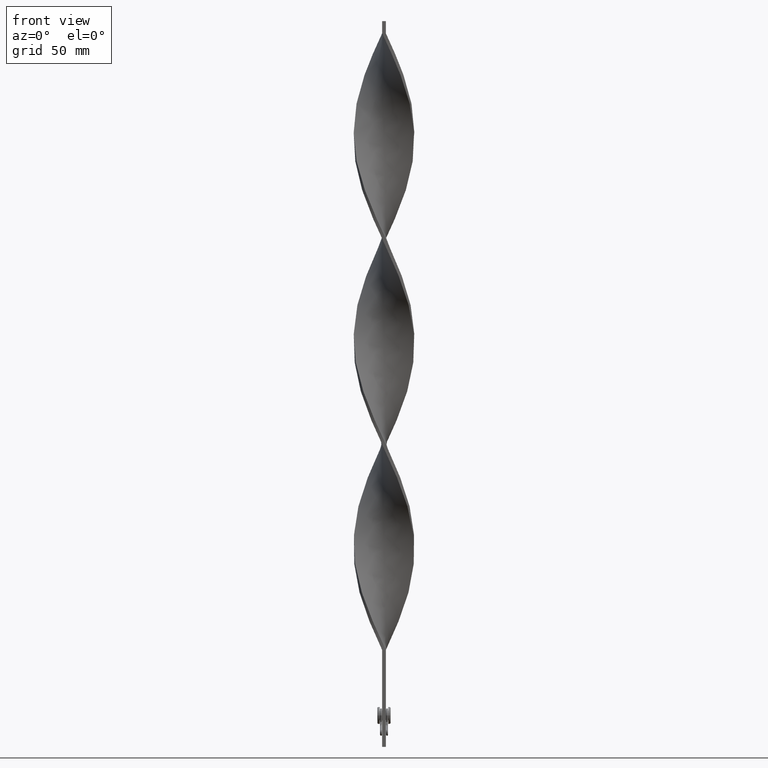
[diagram: clean part render]
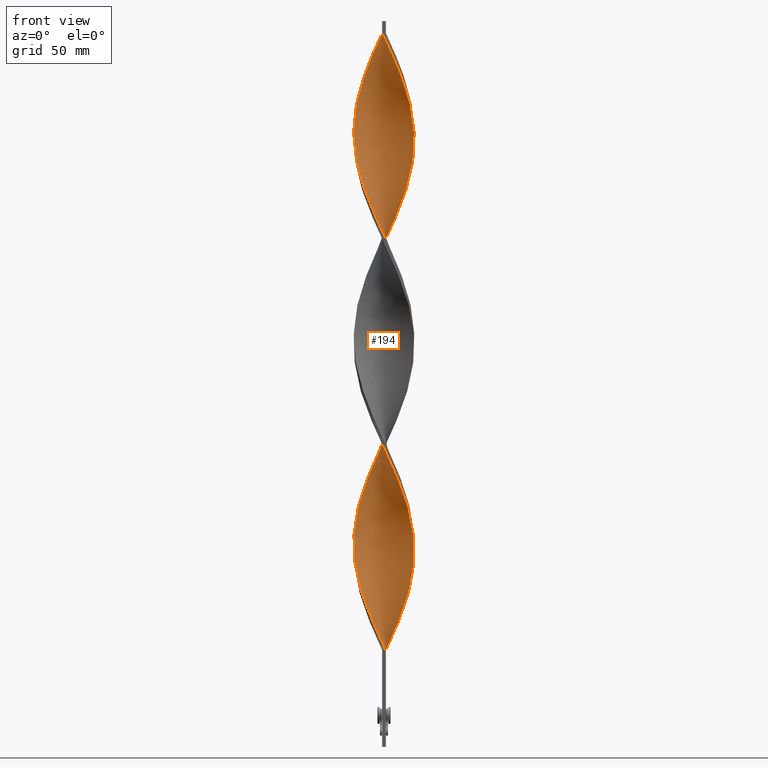
[diagram: same view with one face highlighted and labeled with its STEP entity id]
A machine part, front view. The second image highlights one B-rep face of the part: STEP entity #194.
In plain terms, the highlighted face is a freeform B-spline surface patch.
Its self-contained STEP definition (entity closure, byte-faithful):
#11 = CARTESIAN_POINT ( 'NONE',  ( -7.192885447545556588, 10.29787303672001997, 110.1250000000000142 ) ) ;
#22 = CARTESIAN_POINT ( 'NONE',  ( 12.55902628011846645, 0.2337713353077330303, 250.3750000000000568 ) ) ;
#33 = CARTESIAN_POINT ( 'NONE',  ( 3.658622801590747819, -12.01658309743656261, 203.6250000000000568 ) ) ;
#38 = CARTESIAN_POINT ( 'NONE',  ( 11.08404438769758116, 5.909970402080499952, 237.6250000000000284 ) ) ;
#42 = CARTESIAN_POINT ( 'NONE',  ( -12.55902628011846645, -0.2337713353077399692, 165.3750000000000568 ) ) ;
#56 = CARTESIAN_POINT ( 'NONE',  ( -9.045873944214958939, -8.715271351328699012, 233.3750000000000284 ) ) ;
#61 = CARTESIAN_POINT ( 'NONE',  ( 5.006626353603062185, -11.47807442715925674, 282.2500000000000000 ) ) ;
#76 = CARTESIAN_POINT ( 'NONE',  ( -3.658622801590750928, 12.01658309743655906, 118.6250000000000284 ) ) ;
#79 = CARTESIAN_POINT ( 'NONE',  ( -12.36783393232032857, 2.195557779805333176, 258.8750000000000568 ) ) ;
#82 = CARTESIAN_POINT ( 'NONE',  ( 11.47807442715925674, 5.006626353603061297, 69.75000000000000000 ) ) ;
#87 = CARTESIAN_POINT ( 'NONE',  ( 10.79708867754994195, -6.343136139885609204, 265.2500000000000000 ) ) ;
#111 = CARTESIAN_POINT ( 'NONE',  ( -0.7499999999999970024, -12.50000000000000000, 295.0000000000000000 ) ) ;
#119 = CARTESIAN_POINT ( 'NONE',  ( -11.08404438769758471, 5.909970402080495511, 97.37500000000000000 ) ) ;
#145 = CARTESIAN_POINT ( 'NONE',  ( -1.733771335307733974, 12.44097371988153711, 122.8750000000000284 ) ) ;
#164 = CARTESIAN_POINT ( 'NONE',  ( -12.44097371988153711, -1.733771335307733086, 80.37500000000001421 ) ) ;
#167 = CARTESIAN_POINT ( 'NONE',  ( 7.192885447545554811, -10.29787303672002352, 195.1250000000000568 ) ) ;
#189 = CARTESIAN_POINT ( 'NONE',  ( 12.50000000000000000, -0.7499999999999977796, 82.50000000000000000 ) ) ;
#194 = ADVANCED_FACE ( 'NONE', ( #3916 ), #2250, .T. ) ;
#195 = CARTESIAN_POINT ( 'NONE',  ( -1.733771335307734196, 12.44097371988153711, 292.8750000000000568 ) ) ;
#208 = CARTESIAN_POINT ( 'NONE',  ( 0.7500000000000015543, -12.50000000000000000, 40.00000000000000000 ) ) ;
#235 = CARTESIAN_POINT ( 'NONE',  ( -9.671873490467488566, -7.954078399437126023, 65.50000000000000000 ) ) ;
#247 = CARTESIAN_POINT ( 'NONE',  ( -1.214664557556531133, -12.46343010621939484, 44.25000000000000000 ) ) ;
#253 = CARTESIAN_POINT ( 'NONE',  ( -7.192885447545552147, -10.29787303672002530, 139.8749999999999716 ) ) ;
#257 = CARTESIAN_POINT ( 'NONE',  ( 10.79708867754994195, -6.343136139885609204, 95.25000000000000000 ) ) ;
#261 = CARTESIAN_POINT ( 'NONE',  ( -10.29787303672002174, -7.192885447545556588, 67.62500000000002842 ) ) ;
#277 = CARTESIAN_POINT ( 'NONE',  ( -5.493386832225666261, -11.29630431837985860, 135.6249999999999716 ) ) ;
#281 = CARTESIAN_POINT ( 'NONE',  ( 3.149420042465480130, -12.11996919947062956, 116.5000000000000142 ) ) ;
#297 = EDGE_CURVE ( 'NONE', #3213, #1531, #4074, .T. ) ;
#300 = CARTESIAN_POINT ( 'NONE',  ( -6.343136139885607427, -10.79708867754994195, 137.7500000000000000 ) ) ;
#303 = CARTESIAN_POINT ( 'NONE',  ( -1.733771335307727757, -12.44097371988153711, 127.1250000000000142 ) ) ;
#307 = CARTESIAN_POINT ( 'NONE',  ( 12.01658309743656261, 3.658622801590746931, 161.1250000000000000 ) ) ;
#330 = CARTESIAN_POINT ( 'NONE',  ( -0.2337713353077408296, 12.55902628011846645, 207.8750000000000568 ) ) ;
#331 = CARTESIAN_POINT ( 'NONE',  ( 1.733771335307729311, 12.44097371988153711, 42.12500000000001421 ) ) ;
#336 = CARTESIAN_POINT ( 'NONE',  ( -11.29630431837985505, 5.493386832225669814, 178.1250000000000284 ) ) ;
#346 = CARTESIAN_POINT ( 'NONE',  ( 12.46343010621939484, -1.214664557556528468, 171.7500000000000000 ) ) ;
#353 = CARTESIAN_POINT ( 'NONE',  ( 9.369164850721755755, 8.308504678941934785, 231.2500000000000000 ) ) ;
#357 = CARTESIAN_POINT ( 'NONE',  ( -8.715271351328697236, -9.045873944214962492, 144.1250000000000000 ) ) ;
#358 = CARTESIAN_POINT ( 'NONE',  ( 12.50000000000000000, 0.7500000000000037748, 167.5000000000000000 ) ) ;
#368 = CARTESIAN_POINT ( 'NONE',  ( 0.2337713353077275902, 12.55902628011846645, 127.1250000000000142 ) ) ;
#374 = CARTESIAN_POINT ( 'NONE',  ( 9.671873490467490342, -7.954078399437122471, 269.5000000000000000 ) ) ;
#378 = CARTESIAN_POINT ( 'NONE',  ( 12.46343010621939484, 1.214664557556534685, 248.2500000000000284 ) ) ;
#393 = CARTESIAN_POINT ( 'NONE',  ( 1.214664557556529356, 12.46343010621939484, 129.2500000000000000 ) ) ;
#400 = CARTESIAN_POINT ( 'NONE',  ( 11.65644370790821149, -4.576004816908206152, 261.0000000000000000 ) ) ;
#401 = CARTESIAN_POINT ( 'NONE',  ( 0.7499999999999984457, 12.49999999999999822, 40.00000000000000000 ) ) ;
#404 = CARTESIAN_POINT ( 'NONE',  ( -11.47807442715925674, -5.006626353603062185, 154.7500000000000000 ) ) ;
#410 = CARTESIAN_POINT ( 'NONE',  ( 10.29787303672002530, -7.192885447545553923, 97.37500000000000000 ) ) ;
#417 = CARTESIAN_POINT ( 'NONE',  ( 11.08404438769758826, -5.909970402080491070, 182.3750000000000284 ) ) ;
#421 = CARTESIAN_POINT ( 'NONE',  ( 12.11996919947062956, 3.149420042465479685, 244.0000000000000284 ) ) ;
#435 = CARTESIAN_POINT ( 'NONE',  ( 6.740552907874700850, 10.55355136890620038, 142.0000000000000284 ) ) ;
#439 = CARTESIAN_POINT ( 'NONE',  ( 10.79708867754994195, -6.343136139885609204, 265.2500000000000000 ) ) ;
#444 = CARTESIAN_POINT ( 'NONE',  ( 3.149420042465480130, -12.11996919947062956, 286.5000000000000568 ) ) ;
#448 = CARTESIAN_POINT ( 'NONE',  ( -12.55902628011846645, 0.2337713353077282563, 84.62500000000001421 ) ) ;
#450 = CARTESIAN_POINT ( 'NONE',  ( -3.658622801590751372, 12.01658309743655906, 288.6250000000000000 ) ) ;
#476 = CARTESIAN_POINT ( 'NONE',  ( -11.08404438769758471, 5.909970402080495511, 267.3750000000000000 ) ) ;
#484 = CARTESIAN_POINT ( 'NONE',  ( -8.715271351328700788, 9.045873944214958939, 275.8750000000000568 ) ) ;
#494 = CARTESIAN_POINT ( 'NONE',  ( 8.308504678941931232, 9.369164850721757531, 146.2500000000000284 ) ) ;
#504 = CARTESIAN_POINT ( 'NONE',  ( -8.715271351328700788, 9.045873944214958939, 275.8750000000000000 ) ) ;
#505 = CARTESIAN_POINT ( 'NONE',  ( -4.576004816908211481, 11.65644370790820794, 116.5000000000000142 ) ) ;
#527 = CARTESIAN_POINT ( 'NONE',  ( -11.87210446662093588, 4.103282305125619978, 263.1250000000000568 ) ) ;
#555 = CARTESIAN_POINT ( 'NONE',  ( 10.55355136890620038, -6.740552907874699073, 184.5000000000000284 ) ) ;
#566 = CARTESIAN_POINT ( 'NONE',  ( 9.369164850721755755, 8.308504678941934785, 61.25000000000000000 ) ) ;
#603 = CARTESIAN_POINT ( 'NONE',  ( -3.658622801590745599, -12.01658309743656261, 131.3750000000000000 ) ) ;
#607 = CARTESIAN_POINT ( 'NONE',  ( 12.01658309743656261, -3.658622801590746487, 88.87500000000001421 ) ) ;
#614 = CARTESIAN_POINT ( 'NONE',  ( -2.195557779805334064, -12.36783393232032680, 46.37500000000000711 ) ) ;
#632 = CARTESIAN_POINT ( 'NONE',  ( -0.7499999999999970024, -12.50000000000000000, 125.0000000000000000 ) ) ;
#636 = CARTESIAN_POINT ( 'NONE',  ( 4.576004816908206152, 11.65644370790820972, 48.50000000000000000 ) ) ;
#646 = CARTESIAN_POINT ( 'NONE',  ( -11.87210446662093588, 4.103282305125619978, 93.12500000000001421 ) ) ;
#653 = CARTESIAN_POINT ( 'NONE',  ( -4.103282305125631524, 11.87210446662093410, 199.3750000000000568 ) ) ;
#657 = CARTESIAN_POINT ( 'NONE',  ( 7.192885447545553035, 10.29787303672002352, 224.8750000000000284 ) ) ;
#675 = EDGE_CURVE ( 'NONE', #1531, #2872, #3221, .T. ) ;
#677 = CARTESIAN_POINT ( 'NONE',  ( -12.01658309743656439, 3.658622801590739382, 173.8750000000000568 ) ) ;
#681 = CARTESIAN_POINT ( 'NONE',  ( -12.50000000000000000, 0.7499999999999962252, 167.5000000000000000 ) ) ;
#697 = CARTESIAN_POINT ( 'NONE',  ( -11.47807442715926030, 5.006626353603057744, 95.25000000000000000 ) ) ;
#703 = CARTESIAN_POINT ( 'NONE',  ( 7.192885447545553923, 10.29787303672002530, 224.8750000000000000 ) ) ;
#707 = CARTESIAN_POINT ( 'NONE',  ( -12.46343010621939307, -1.214664557556536018, 163.2500000000000000 ) ) ;
#717 = CARTESIAN_POINT ( 'NONE',  ( -5.493386832225671590, 11.29630431837985682, 114.3750000000000142 ) ) ;
#724 = CARTESIAN_POINT ( 'NONE',  ( 12.36783393232032502, 2.195557779805337173, 246.1250000000000568 ) ) ;
#728 = CARTESIAN_POINT ( 'NONE',  ( 12.11996919947062956, 3.149420042465479685, 244.0000000000000284 ) ) ;
#737 = CARTESIAN_POINT ( 'NONE',  ( 9.369164850721757531, -8.308504678941929456, 188.7500000000000284 ) ) ;
#742 = CARTESIAN_POINT ( 'NONE',  ( 12.44097371988153711, -1.733771335307728423, 254.6250000000000568 ) ) ;
#747 = CARTESIAN_POINT ( 'NONE',  ( -5.909970402080497287, 11.08404438769758293, 195.1250000000000568 ) ) ;
#761 = CARTESIAN_POINT ( 'NONE',  ( -5.006626353603057744, -11.47807442715926030, 222.7500000000000284 ) ) ;
#771 = CARTESIAN_POINT ( 'NONE',  ( 2.195557779805337173, -12.36783393232032502, 288.6250000000000000 ) ) ;
#782 = CARTESIAN_POINT ( 'NONE',  ( 2.195557779805331844, 12.36783393232032857, 131.3750000000000284 ) ) ;
#791 = CARTESIAN_POINT ( 'NONE',  ( 9.045873944214960716, -8.715271351328697236, 271.6250000000000000 ) ) ;
#808 = CARTESIAN_POINT ( 'NONE',  ( 11.87210446662093588, 4.103282305125625307, 241.8750000000000853 ) ) ;
#821 = CARTESIAN_POINT ( 'NONE',  ( 2.696197068449243783, -12.22877840865904631, 205.7500000000000284 ) ) ;
#826 = CARTESIAN_POINT ( 'NONE',  ( -12.36783393232032857, 2.195557779805332732, 258.8750000000000000 ) ) ;
#838 = CARTESIAN_POINT ( 'NONE',  ( 5.909970402080494623, 11.08404438769758471, 139.8749999999999716 ) ) ;
#851 = CARTESIAN_POINT ( 'NONE',  ( -12.50000000000000000, -0.7500000000000023315, 252.5000000000000000 ) ) ;
#853 = CARTESIAN_POINT ( 'NONE',  ( -12.55902628011846645, 0.2337713353077282563, 254.6250000000000568 ) ) ;
#878 = CARTESIAN_POINT ( 'NONE',  ( -7.571135413668907965, -10.02305835011481605, 229.1250000000000000 ) ) ;
#883 = CARTESIAN_POINT ( 'NONE',  ( -0.7500000000000029976, 12.50000000000000000, 295.0000000000000000 ) ) ;
#892 = CARTESIAN_POINT ( 'NONE',  ( 10.55355136890619860, 6.740552907874704403, 65.50000000000000000 ) ) ;
#902 = CARTESIAN_POINT ( 'NONE',  ( -8.308504678941933008, -9.369164850721757531, 231.2500000000000000 ) ) ;
#916 = CARTESIAN_POINT ( 'NONE',  ( 7.954078399437124247, 9.671873490467490342, 57.00000000000000000 ) ) ;
#935 = CARTESIAN_POINT ( 'NONE',  ( 5.006626353603055968, 11.47807442715926030, 137.7500000000000000 ) ) ;
#940 = CARTESIAN_POINT ( 'NONE',  ( 11.47807442715925674, 5.006626353603061297, 69.75000000000000000 ) ) ;
#962 = CARTESIAN_POINT ( 'NONE',  ( 8.308504678941936561, -9.369164850721752202, 103.7500000000000142 ) ) ;
#966 = CARTESIAN_POINT ( 'NONE',  ( 5.493386832225668037, 11.29630431837985682, 50.62500000000000000 ) ) ;
#978 = CARTESIAN_POINT ( 'NONE',  ( -7.571135413668908853, -10.02305835011481605, 59.12500000000001421 ) ) ;
#986 = CARTESIAN_POINT ( 'NONE',  ( -11.29630431837985505, 5.493386832225669814, 178.1250000000000284 ) ) ;
#990 = CARTESIAN_POINT ( 'NONE',  ( 1.733771335307729311, 12.44097371988153711, 42.12500000000000711 ) ) ;
#993 = ORIENTED_EDGE ( 'NONE', *, *, #2399, .F. ) ;
#1007 = CARTESIAN_POINT ( 'NONE',  ( -12.36783393232032857, 2.195557779805332732, 88.87500000000001421 ) ) ;
#1015 = CARTESIAN_POINT ( 'NONE',  ( -5.909970402080496399, 11.08404438769758293, 195.1250000000000568 ) ) ;
#1020 = CARTESIAN_POINT ( 'NONE',  ( 1.733771335307729311, 12.44097371988153711, 212.1250000000000284 ) ) ;
#1041 = CARTESIAN_POINT ( 'NONE',  ( 2.195557779805337173, -12.36783393232032502, 118.6250000000000284 ) ) ;
#1046 = CARTESIAN_POINT ( 'NONE',  ( -2.696197068449236234, -12.22877840865904986, 129.2500000000000000 ) ) ;
#1057 = CARTESIAN_POINT ( 'NONE',  ( -12.01658309743655906, -3.658622801590750484, 76.12500000000001421 ) ) ;
#1062 = CARTESIAN_POINT ( 'NONE',  ( -12.50000000000000000, -0.7500000000000023315, 252.5000000000000000 ) ) ;
#1064 = CARTESIAN_POINT ( 'NONE',  ( -10.79708867754994195, 6.343136139885607427, 180.2500000000000284 ) ) ;
#1068 = CARTESIAN_POINT ( 'NONE',  ( -10.55355136890619683, -6.740552907874706179, 150.5000000000000284 ) ) ;
#1070 = CARTESIAN_POINT ( 'NONE',  ( -1.733771335307733974, 12.44097371988153711, 292.8750000000000568 ) ) ;
#1075 = CARTESIAN_POINT ( 'NONE',  ( -12.01658309743655906, -3.658622801590750928, 76.12500000000001421 ) ) ;
#1086 = CARTESIAN_POINT ( 'NONE',  ( 8.308504678941931232, 9.369164850721757531, 146.2500000000000284 ) ) ;
#1095 = CARTESIAN_POINT ( 'NONE',  ( 3.149420042465480130, -12.11996919947062956, 286.5000000000000568 ) ) ;
#1100 = CARTESIAN_POINT ( 'NONE',  ( 11.47807442715925674, 5.006626353603061297, 239.7500000000000284 ) ) ;
#1113 = CARTESIAN_POINT ( 'NONE',  ( 12.01658309743656261, 3.658622801590746931, 161.1250000000000284 ) ) ;
#1118 = CARTESIAN_POINT ( 'NONE',  ( 10.29787303672002530, -7.192885447545553923, 267.3750000000000000 ) ) ;
#1123 = CARTESIAN_POINT ( 'NONE',  ( 4.576004816908206152, 11.65644370790820972, 218.5000000000000284 ) ) ;
#1133 = CARTESIAN_POINT ( 'NONE',  ( -1.214664557556531133, -12.46343010621939484, 214.2500000000000284 ) ) ;
#1155 = CARTESIAN_POINT ( 'NONE',  ( 5.006626353603055968, 11.47807442715926030, 137.7500000000000000 ) ) ;
#1180 = CARTESIAN_POINT ( 'NONE',  ( 10.29787303672002352, 7.192885447545553035, 152.6250000000000000 ) ) ;
#1183 = CARTESIAN_POINT ( 'NONE',  ( -12.11996919947063311, 3.149420042465475689, 261.0000000000000000 ) ) ;
#1185 = CARTESIAN_POINT ( 'NONE',  ( 12.55902628011846645, 0.2337713353077330303, 250.3750000000000853 ) ) ;
#1190 = CARTESIAN_POINT ( 'NONE',  ( -12.11996919947063311, 3.149420042465475689, 91.00000000000000000 ) ) ;
#1198 = CARTESIAN_POINT ( 'NONE',  ( -5.493386832225671590, 11.29630431837985682, 284.3750000000000568 ) ) ;
#1212 = CARTESIAN_POINT ( 'NONE',  ( -10.55355136890620038, 6.740552907874700850, 99.50000000000000000 ) ) ;
#1220 = CARTESIAN_POINT ( 'NONE',  ( 3.658622801590747819, -12.01658309743656261, 203.6250000000000568 ) ) ;
#1226 = CARTESIAN_POINT ( 'NONE',  ( -12.44097371988153711, -1.733771335307733308, 250.3750000000000568 ) ) ;
#1237 = CARTESIAN_POINT ( 'NONE',  ( 11.29630431837985682, -5.493386832225666261, 263.1250000000000568 ) ) ;
#1251 = CARTESIAN_POINT ( 'NONE',  ( -12.46343010621939484, 1.214664557556530244, 256.7500000000000568 ) ) ;
#1273 = CARTESIAN_POINT ( 'NONE',  ( -7.954078399437126912, 9.671873490467486789, 278.0000000000000000 ) ) ;
#1286 = CARTESIAN_POINT ( 'NONE',  ( 10.29787303672002352, -7.192885447545553035, 97.37500000000000000 ) ) ;
#1289 = CARTESIAN_POINT ( 'NONE',  ( -3.149420042465475689, -12.11996919947063134, 48.50000000000000000 ) ) ;
#1294 = CARTESIAN_POINT ( 'NONE',  ( -11.08404438769758471, 5.909970402080496399, 267.3750000000000568 ) ) ;
#1330 = CARTESIAN_POINT ( 'NONE',  ( 9.671873490467486789, 7.954078399437126912, 150.5000000000000284 ) ) ;
#1336 = CARTESIAN_POINT ( 'NONE',  ( 6.343136139885609204, 10.79708867754994195, 52.75000000000000711 ) ) ;
#1339 = CARTESIAN_POINT ( 'NONE',  ( 9.369164850721757531, -8.308504678941929456, 188.7500000000000284 ) ) ;
#1352 = CARTESIAN_POINT ( 'NONE',  ( -5.006626353603057744, -11.47807442715926030, 52.75000000000000711 ) ) ;
#1358 = CARTESIAN_POINT ( 'NONE',  ( -11.87210446662093410, -4.103282305125630636, 156.8750000000000000 ) ) ;
#1382 = CARTESIAN_POINT ( 'NONE',  ( 1.214664557556535573, -12.46343010621939307, 120.7500000000000000 ) ) ;
#1403 = CARTESIAN_POINT ( 'NONE',  ( -12.50000000000000000, -0.7500000000000023315, 82.50000000000000000 ) ) ;
#1411 = CARTESIAN_POINT ( 'NONE',  ( -10.55355136890619683, -6.740552907874706179, 150.5000000000000284 ) ) ;
#1415 = CARTESIAN_POINT ( 'NONE',  ( -6.343136139885607427, -10.79708867754994195, 137.7500000000000000 ) ) ;
#1416 = CARTESIAN_POINT ( 'NONE',  ( 10.02305835011481427, 7.571135413668910630, 63.37500000000000000 ) ) ;
#1426 = CARTESIAN_POINT ( 'NONE',  ( 12.55902628011846645, 0.2337713353077330303, 80.37500000000001421 ) ) ;
#1433 = CARTESIAN_POINT ( 'NONE',  ( 5.493386832225668037, 11.29630431837985682, 220.6250000000000000 ) ) ;
#1437 = CARTESIAN_POINT ( 'NONE',  ( -10.29787303672002707, 7.192885447545547706, 182.3750000000000284 ) ) ;
#1444 = CARTESIAN_POINT ( 'NONE',  ( -6.343136139885613645, 10.79708867754993840, 282.2500000000000000 ) ) ;
#1447 = CARTESIAN_POINT ( 'NONE',  ( 12.11996919947063311, -3.149420042465473912, 176.0000000000000284 ) ) ;
#1455 = CARTESIAN_POINT ( 'NONE',  ( 6.343136139885609204, 10.79708867754994195, 52.75000000000000711 ) ) ;
#1459 = CARTESIAN_POINT ( 'NONE',  ( -12.01658309743656439, 3.658622801590739382, 173.8750000000000568 ) ) ;
#1463 = CARTESIAN_POINT ( 'NONE',  ( 10.79708867754993840, 6.343136139885613645, 154.7500000000000000 ) ) ;
#1477 = CARTESIAN_POINT ( 'NONE',  ( -1.733771335307734196, 12.44097371988153711, 122.8750000000000284 ) ) ;
#1481 = CARTESIAN_POINT ( 'NONE',  ( -2.195557779805334064, -12.36783393232032680, 216.3750000000000284 ) ) ;
#1485 = CARTESIAN_POINT ( 'NONE',  ( 12.22877840865904986, -2.696197068449237122, 256.7500000000000568 ) ) ;
#1489 = CARTESIAN_POINT ( 'NONE',  ( 12.50000000000000000, -0.7499999999999977796, 252.5000000000000000 ) ) ;
#1490 = CARTESIAN_POINT ( 'NONE',  ( 12.11996919947063311, -3.149420042465473912, 176.0000000000000284 ) ) ;
#1499 = CARTESIAN_POINT ( 'NONE',  ( 0.7500000000000015543, -12.50000000000000000, 210.0000000000000284 ) ) ;
#1504 = CARTESIAN_POINT ( 'NONE',  ( 12.46343010621939484, 1.214664557556534685, 248.2500000000000284 ) ) ;
#1518 = CARTESIAN_POINT ( 'NONE',  ( 10.79708867754993840, 6.343136139885613645, 154.7500000000000000 ) ) ;
#1519 = CARTESIAN_POINT ( 'NONE',  ( 8.715271351328697236, 9.045873944214960716, 59.12500000000001421 ) ) ;
#1524 = CARTESIAN_POINT ( 'NONE',  ( 0.2337713353077338907, -12.55902628011846645, 292.8750000000000568 ) ) ;
#1531 = VERTEX_POINT ( 'NONE', #208 ) ;
#1544 = CARTESIAN_POINT ( 'NONE',  ( -4.576004816908211481, 11.65644370790820794, 116.5000000000000142 ) ) ;
#1556 = CARTESIAN_POINT ( 'NONE',  ( 6.740552907874706179, -10.55355136890619683, 278.0000000000000000 ) ) ;
#1569 = CARTESIAN_POINT ( 'NONE',  ( -3.658622801590750928, 12.01658309743655906, 288.6250000000000000 ) ) ;
#1578 = CARTESIAN_POINT ( 'NONE',  ( -10.02305835011481605, 7.571135413668907965, 101.6250000000000000 ) ) ;
#1602 = CARTESIAN_POINT ( 'NONE',  ( -4.576004816908211481, 11.65644370790820794, 286.5000000000000568 ) ) ;
#1609 = CARTESIAN_POINT ( 'NONE',  ( -7.192885447545556588, 10.29787303672002174, 280.1250000000000000 ) ) ;
#1612 = CARTESIAN_POINT ( 'NONE',  ( -0.7500000000000029976, 12.50000000000000000, 125.0000000000000000 ) ) ;
#1617 = CARTESIAN_POINT ( 'NONE',  ( -5.006626353603057744, -11.47807442715926030, 222.7500000000000284 ) ) ;
#1618 = B_SPLINE_CURVE_WITH_KNOTS ( 'NONE', 3,
 ( #883, #2374, #4242, #4597 ),
 .UNSPECIFIED., .F., .F.,
 ( 4, 4 ),
 ( 0.000000000000000000, 1.000000000000000000 ),
 .UNSPECIFIED. ) ;
#1631 = CARTESIAN_POINT ( 'NONE',  ( 2.195557779805332288, 12.36783393232032857, 131.3750000000000000 ) ) ;
#1636 = CARTESIAN_POINT ( 'NONE',  ( -12.36783393232032857, 2.195557779805333176, 88.87500000000000000 ) ) ;
#1638 = CARTESIAN_POINT ( 'NONE',  ( 6.343136139885614533, -10.79708867754993840, 197.2500000000000000 ) ) ;
#1645 = CARTESIAN_POINT ( 'NONE',  ( -3.149420042465475689, -12.11996919947063134, 218.5000000000000284 ) ) ;
#1655 = CARTESIAN_POINT ( 'NONE',  ( 5.006626353603062185, -11.47807442715925674, 112.2500000000000142 ) ) ;
#1660 = CARTESIAN_POINT ( 'NONE',  ( -11.65644370790820794, -4.576004816908210593, 244.0000000000000284 ) ) ;
#1673 = CARTESIAN_POINT ( 'NONE',  ( 0.2337713353077275902, 12.55902628011846645, 127.1250000000000142 ) ) ;
#1705 = CARTESIAN_POINT ( 'NONE',  ( 0.7499999999999984457, 12.49999999999999822, 40.00000000000000000 ) ) ;
#1707 = CARTESIAN_POINT ( 'NONE',  ( 10.02305835011481427, -7.571135413668912406, 186.6250000000000284 ) ) ;
#1720 = CARTESIAN_POINT ( 'NONE',  ( -6.740552907874702626, -10.55355136890620038, 57.00000000000000000 ) ) ;
#1726 = CARTESIAN_POINT ( 'NONE',  ( -10.02305835011481072, -7.571135413668918623, 148.3750000000000000 ) ) ;
#1729 = CARTESIAN_POINT ( 'NONE',  ( 12.46343010621939484, 1.214664557556534685, 78.25000000000001421 ) ) ;
#1749 =( BOUNDED_CURVE ( )  B_SPLINE_CURVE ( 2, ( #1705, #990, #2029, #3170, #636, #966, #1336, #4222, #916, #3123, #566, #3483, #892, #2383, #940, #2456, #4198, #3911, #1729, #2123, #189, #3841, #4583, #607, #2097, #3554, #257, #1286, #2051, #3197, #3502, #4658, #4294, #2484, #1655, #4607, #281, #3575, #1755, #3220, #2200, #303, #1046, #3697, #2579, #2878, #1415, #3650, #3272, #357, #3601, #2555, #1068, #4014, #404, #1875, #3337, #1833, #707, #42, #681, #4735, #3249, #1459, #3293, #336, #2853, #1437, #2510, #2172, #3965, #4344, #2239, #747, #2528, #3626, #4713, #4757, #3989, #2901, #4322, #1020, #1854, #3314, #1123, #4039, #1783, #657, #2925, #2148, #2221, #4397, #1810, #4365, #1100, #2601, #728, #3672, #378, #22, #1489, #2951, #4417, #4057, #3790, #1237, #87, #2287, #4102, #791, #2973, #4077, #1556, #3739, #3762, #3719, #444, #771, #3018, #2268, #111 ),
 .UNSPECIFIED., .F., .T. ) 
 B_SPLINE_CURVE_WITH_KNOTS ( ( 3, 2, 2, 2, 2, 2, 2, 2, 2, 2, 2, 2, 2, 2, 2, 2, 2, 2, 2, 2, 2, 2, 2, 2, 2, 2, 2, 2, 2, 2, 2, 2, 2, 2, 2, 2, 2, 2, 2, 2, 2, 2, 2, 2, 2, 2, 2, 2, 2, 2, 2, 2, 2, 2, 2, 2, 2, 2, 2, 2, 3 ),
 ( 0.000000000000000000, 0.01250000000000000243, 0.02500000000000000486, 0.03749999999999999861, 0.05000000000000000971, 0.06250000000000000000, 0.07499999999999999722, 0.08749999999999998057, 0.1000000000000000194, 0.1125000000000000028, 0.1250000000000000000, 0.1375000000000000111, 0.1499999999999999944, 0.1625000000000000056, 0.1749999999999999611, 0.1875000000000000000, 0.2000000000000000389, 0.2124999999999999944, 0.2250000000000000056, 0.2374999999999999611, 0.2500000000000000000, 0.2625000000000000111, 0.2750000000000000222, 0.2874999999999999778, 0.2999999999999999889, 0.3125000000000000000, 0.3250000000000000111, 0.3375000000000000777, 0.3499999999999999223, 0.3624999999999999889, 0.3750000000000000000, 0.3875000000000000111, 0.4000000000000000777, 0.4124999999999999223, 0.4249999999999999889, 0.4375000000000000000, 0.4500000000000000111, 0.4625000000000000777, 0.4749999999999999223, 0.4874999999999999889, 0.5000000000000000000, 0.5124999999999999556, 0.5250000000000000222, 0.5374999999999999778, 0.5500000000000000444, 0.5625000000000000000, 0.5749999999999999556, 0.5875000000000000222, 0.5999999999999999778, 0.6125000000000000444, 0.6250000000000000000, 0.6374999999999999556, 0.6500000000000000222, 0.6624999999999999778, 0.6750000000000001554, 0.6875000000000000000, 0.6999999999999998446, 0.7125000000000000222, 0.7249999999999999778, 0.7375000000000001554, 0.7500000000000000000 ),
 .UNSPECIFIED. ) 
 CURVE ( )  GEOMETRIC_REPRESENTATION_ITEM ( )  RATIONAL_B_SPLINE_CURVE ( ( 1.000000000000000000, 0.9969173337331279638, 1.000000000000000000, 0.9969173337331279638, 1.000000000000000000, 0.9969173337331279638, 1.000000000000000000, 0.9969173337331279638, 1.000000000000000000, 0.9969173337331279638, 1.000000000000000000, 0.9969173337331279638, 1.000000000000000000, 0.9969173337331279638, 1.000000000000000000, 0.9969173337331279638, 1.000000000000000000, 0.9969173337331279638, 1.000000000000000000, 0.9969173337331279638, 1.000000000000000000, 0.9969173337331279638, 1.000000000000000000, 0.9969173337331279638, 1.000000000000000000, 0.9969173337331279638, 1.000000000000000000, 0.9969173337331279638, 1.000000000000000000, 0.9969173337331279638, 1.000000000000000000, 0.9969173337331279638, 1.000000000000000000, 0.9969173337331279638, 1.000000000000000000, 0.9969173337331279638, 1.000000000000000000, 0.9969173337331279638, 1.000000000000000000, 0.9969173337331279638, 1.000000000000000000, 0.9969173337331279638, 1.000000000000000000, 0.9969173337331279638, 1.000000000000000000, 0.9969173337331279638, 1.000000000000000000, 0.9969173337331279638, 1.000000000000000000, 0.9969173337331279638, 1.000000000000000000, 0.9969173337331279638, 1.000000000000000000, 0.9969173337331279638, 1.000000000000000000, 0.9969173337331279638, 1.000000000000000000, 0.9969173337331279638, 1.000000000000000000, 0.9969173337331279638, 1.000000000000000000, 0.9969173337331279638, 1.000000000000000000, 0.9969173337331279638, 1.000000000000000000, 0.9969173337331279638, 1.000000000000000000, 0.9969173337331279638, 1.000000000000000000, 0.9969173337331279638, 1.000000000000000000, 0.9969173337331279638, 1.000000000000000000, 0.9969173337331279638, 1.000000000000000000, 0.9969173337331279638, 1.000000000000000000, 0.9969173337331279638, 1.000000000000000000, 0.9969173337331279638, 1.000000000000000000, 0.9969173337331279638, 1.000000000000000000, 0.9969173337331279638, 1.000000000000000000, 0.9969173337331279638, 1.000000000000000000, 0.9969173337331279638, 1.000000000000000000, 0.9969173337331279638, 1.000000000000000000, 0.9969173337331279638, 1.000000000000000000, 0.9969173337331279638, 1.000000000000000000, 0.9969173337331279638, 1.000000000000000000, 0.9969173337331279638, 1.000000000000000000, 0.9969173337331279638, 1.000000000000000000, 0.9969173337331279638, 1.000000000000000000, 0.9969173337331279638, 1.000000000000000000, 0.9969173337331279638, 1.000000000000000000, 0.9969173337331279638, 1.000000000000000000, 0.9969173337331279638, 1.000000000000000000, 0.9969173337331279638, 1.000000000000000000, 0.9969173337331279638, 1.000000000000000000, 0.9969173337331279638, 1.000000000000000000, 0.9969173337331279638, 1.000000000000000000, 0.9969173337331279638, 1.000000000000000000 ) ) 
 REPRESENTATION_ITEM ( '' )  );
#1751 = CARTESIAN_POINT ( 'NONE',  ( -7.954078399437122471, -9.671873490467490342, 142.0000000000000284 ) ) ;
#1755 = CARTESIAN_POINT ( 'NONE',  ( 1.214664557556535573, -12.46343010621939307, 120.7500000000000000 ) ) ;
#1756 = CARTESIAN_POINT ( 'NONE',  ( 11.29630431837985327, 5.493386832225676919, 156.8750000000000000 ) ) ;
#1777 = CARTESIAN_POINT ( 'NONE',  ( -9.671873490467490342, 7.954078399437120694, 184.5000000000000284 ) ) ;
#1778 = CARTESIAN_POINT ( 'NONE',  ( 4.576004816908206152, 11.65644370790820972, 48.50000000000000000 ) ) ;
#1783 = CARTESIAN_POINT ( 'NONE',  ( 6.343136139885609204, 10.79708867754994195, 222.7500000000000284 ) ) ;
#1785 = CARTESIAN_POINT ( 'NONE',  ( 12.22877840865904631, 2.696197068449242895, 163.2500000000000000 ) ) ;
#1798 = CARTESIAN_POINT ( 'NONE',  ( -11.65644370790820794, -4.576004816908210593, 74.00000000000001421 ) ) ;
#1806 = CARTESIAN_POINT ( 'NONE',  ( 0.7499999999999984457, 12.50000000000000000, 210.0000000000000284 ) ) ;
#1810 = CARTESIAN_POINT ( 'NONE',  ( 10.55355136890619860, 6.740552907874704403, 235.5000000000000284 ) ) ;
#1820 = CARTESIAN_POINT ( 'NONE',  ( -7.954078399437126912, 9.671873490467486789, 108.0000000000000142 ) ) ;
#1828 = CARTESIAN_POINT ( 'NONE',  ( 10.02305835011481427, 7.571135413668910630, 233.3750000000000000 ) ) ;
#1833 = CARTESIAN_POINT ( 'NONE',  ( -12.36783393232032680, -2.195557779805333176, 161.1250000000000284 ) ) ;
#1834 = CARTESIAN_POINT ( 'NONE',  ( 12.55902628011846645, -0.2337713353077325862, 169.6250000000000568 ) ) ;
#1844 = CARTESIAN_POINT ( 'NONE',  ( -5.909970402080496399, -11.08404438769758471, 224.8750000000000284 ) ) ;
#1854 = CARTESIAN_POINT ( 'NONE',  ( 2.696197068449238010, 12.22877840865904986, 214.2500000000000284 ) ) ;
#1867 = CARTESIAN_POINT ( 'NONE',  ( 11.29630431837985327, 5.493386832225676919, 156.8750000000000284 ) ) ;
#1875 = CARTESIAN_POINT ( 'NONE',  ( -11.87210446662093410, -4.103282305125631524, 156.8750000000000284 ) ) ;
#1884 = CARTESIAN_POINT ( 'NONE',  ( 7.571135413668908853, 10.02305835011481783, 144.1250000000000000 ) ) ;
#1889 = CARTESIAN_POINT ( 'NONE',  ( 5.909970402080499952, -11.08404438769758116, 280.1250000000000000 ) ) ;
#1905 = CARTESIAN_POINT ( 'NONE',  ( 10.02305835011481427, -7.571135413668913294, 186.6250000000000284 ) ) ;
#1908 = CARTESIAN_POINT ( 'NONE',  ( -12.46343010621939484, 1.214664557556530244, 256.7500000000000568 ) ) ;
#1911 = CARTESIAN_POINT ( 'NONE',  ( 2.195557779805337173, -12.36783393232032502, 288.6250000000000000 ) ) ;
#1923 = CARTESIAN_POINT ( 'NONE',  ( -2.696197068449242007, 12.22877840865904631, 290.7500000000000000 ) ) ;
#1936 = CARTESIAN_POINT ( 'NONE',  ( -11.47807442715926030, 5.006626353603057744, 265.2500000000000000 ) ) ;
#1948 = CARTESIAN_POINT ( 'NONE',  ( -11.47807442715926030, 5.006626353603057744, 95.25000000000000000 ) ) ;
#1951 = CARTESIAN_POINT ( 'NONE',  ( -10.55355136890620038, 6.740552907874700850, 269.5000000000000000 ) ) ;
#1957 = CARTESIAN_POINT ( 'NONE',  ( -4.576004816908211481, 11.65644370790820794, 286.5000000000000568 ) ) ;
#1968 = CARTESIAN_POINT ( 'NONE',  ( 10.79708867754994195, -6.343136139885609204, 95.25000000000000000 ) ) ;
#1982 = CARTESIAN_POINT ( 'NONE',  ( -2.696197068449242007, 12.22877840865904631, 120.7500000000000000 ) ) ;
#1985 = CARTESIAN_POINT ( 'NONE',  ( -10.02305835011481605, 7.571135413668908853, 271.6250000000000000 ) ) ;
#2008 = CARTESIAN_POINT ( 'NONE',  ( 11.29630431837985682, -5.493386832225666261, 93.12500000000001421 ) ) ;
#2011 = CARTESIAN_POINT ( 'NONE',  ( -7.192885447545556588, 10.29787303672001997, 280.1250000000000000 ) ) ;
#2029 = CARTESIAN_POINT ( 'NONE',  ( 2.696197068449238010, 12.22877840865904986, 44.25000000000000000 ) ) ;
#2032 = CARTESIAN_POINT ( 'NONE',  ( -0.2337713353077291167, -12.55902628011846645, 42.12500000000001421 ) ) ;
#2051 = CARTESIAN_POINT ( 'NONE',  ( 9.671873490467490342, -7.954078399437122471, 99.50000000000000000 ) ) ;
#2072 = CARTESIAN_POINT ( 'NONE',  ( -6.740552907874702626, -10.55355136890620038, 57.00000000000000000 ) ) ;
#2093 = CARTESIAN_POINT ( 'NONE',  ( -8.715271351328697236, -9.045873944214962492, 144.1249999999999716 ) ) ;
#2097 = CARTESIAN_POINT ( 'NONE',  ( 11.65644370790821149, -4.576004816908206152, 91.00000000000000000 ) ) ;
#2102 = CARTESIAN_POINT ( 'NONE',  ( -4.103282305125620866, -11.87210446662093588, 50.62500000000000711 ) ) ;
#2110 = CARTESIAN_POINT ( 'NONE',  ( 12.44097371988153711, -1.733771335307728423, 84.62500000000001421 ) ) ;
#2112 = CARTESIAN_POINT ( 'NONE',  ( -3.149420042465475689, -12.11996919947063134, 48.50000000000000000 ) ) ;
#2119 = CARTESIAN_POINT ( 'NONE',  ( -1.733771335307727757, -12.44097371988153711, 127.1250000000000142 ) ) ;
#2123 = CARTESIAN_POINT ( 'NONE',  ( 12.55902628011846645, 0.2337713353077330303, 80.37500000000001421 ) ) ;
#2144 = CARTESIAN_POINT ( 'NONE',  ( -12.11996919947063134, -3.149420042465480574, 159.0000000000000000 ) ) ;
#2148 = CARTESIAN_POINT ( 'NONE',  ( 8.715271351328697236, 9.045873944214960716, 229.1250000000000284 ) ) ;
#2167 = CARTESIAN_POINT ( 'NONE',  ( 7.571135413668912406, -10.02305835011481427, 105.8750000000000142 ) ) ;
#2172 = CARTESIAN_POINT ( 'NONE',  ( -9.045873944214958939, 8.715271351328700788, 186.6250000000000284 ) ) ;
#2188 = CARTESIAN_POINT ( 'NONE',  ( 11.87210446662093588, -4.103282305125623530, 178.1250000000000284 ) ) ;
#2195 = CARTESIAN_POINT ( 'NONE',  ( 7.954078399437124247, 9.671873490467490342, 227.0000000000000000 ) ) ;
#2200 = CARTESIAN_POINT ( 'NONE',  ( -0.7499999999999970024, -12.50000000000000000, 125.0000000000000000 ) ) ;
#2211 = CARTESIAN_POINT ( 'NONE',  ( -2.696197068449242007, 12.22877840865904631, 120.7500000000000000 ) ) ;
#2217 = CARTESIAN_POINT ( 'NONE',  ( 0.7499999999999984457, 12.49999999999999822, 40.00000000000000000 ) ) ;
#2221 = CARTESIAN_POINT ( 'NONE',  ( 9.369164850721755755, 8.308504678941934785, 231.2500000000000000 ) ) ;
#2230 = CARTESIAN_POINT ( 'NONE',  ( 7.954078399437128688, -9.671873490467486789, 193.0000000000000284 ) ) ;
#2239 = CARTESIAN_POINT ( 'NONE',  ( -6.740552907874707955, 10.55355136890619683, 193.0000000000000284 ) ) ;
#2250 =( BOUNDED_SURFACE ( )  B_SPLINE_SURFACE ( 1, 2, ( 
 ( #3844, #2032, #3125, #614, #1289, #2102, #3579, #2760, #2072, #3870, #3532, #3558, #235, #261, #3201, #4662, #4371, #1075, #2559, #164, #3743, #448, #3387, #1636, #1190, #3768, #1948, #119, #1212, #1578, #2350, #3803, #2320, #2277, #3006, #2297, #505, #4183, #1982, #145, #1612, #1673, #3813, #1631, #2377, #3099, #935, #838, #3834, #2336, #494, #2409, #1330, #3905, #1463, #1756, #3273, #307, #1785, #2903, #358, #1834, #4659, #2928, #1490, #2952, #3062, #2401, #555, #1707, #1339, #2459, #3076, #167, #1638, #4670, #4426, #1220, #821, #4505, #4149, #4449, #2658, #1481, #1645, #4162, #1617, #4570, #3469, #878, #902, #4617, #2396, #3131, #4592, #4550, #3827, #3380, #2926, #2944, #1062, #853, #1908, #79, #1183, #2659, #1936, #476, #1951, #3050, #2318, #504, #3440, #1609, #1444, #2607, #1602, #450, #1923, #1070, #2306 ),
 ( #3622, #331, #4753, #2597, #1778, #4730, #1455, #4393, #2353, #1519, #4714, #1416, #2282, #3013, #82, #3628, #2880, #4473, #4514, #1426, #2811, #2110, #2784, #3128, #3441, #2008, #1968, #410, #3985, #3551, #962, #2167, #2453, #2799, #4655, #4340, #4361, #1041, #1382, #3571, #632, #2119, #4269, #603, #2849, #277, #300, #253, #1751, #2093, #4318, #1726, #1411, #3289, #3194, #1358, #2144, #3597, #3216, #2821, #4681, #3961, #3908, #677, #4290, #986, #1064, #2481, #1777, #2550, #2524, #3244, #3934, #1015, #2506, #653, #4709, #2873, #3621, #330, #1806, #4752, #3268, #4729, #4010, #1433, #2896, #703, #2195, #3646, #353, #1828, #2988, #38, #2575, #808, #421, #724, #1504, #1185, #4053, #742, #1485, #3692, #400, #4392, #439, #1118, #374, #2947, #3014, #3757, #4433, #1889, #61, #2283, #1095, #1911, #4034, #1524, #3333 ) ),
 .UNSPECIFIED., .F., .F., .F. ) 
 B_SPLINE_SURFACE_WITH_KNOTS ( ( 2, 2 ),
 ( 3, 2, 2, 2, 2, 2, 2, 2, 2, 2, 2, 2, 2, 2, 2, 2, 2, 2, 2, 2, 2, 2, 2, 2, 2, 2, 2, 2, 2, 2, 2, 2, 2, 2, 2, 2, 2, 2, 2, 2, 2, 2, 2, 2, 2, 2, 2, 2, 2, 2, 2, 2, 2, 2, 2, 2, 2, 2, 2, 2, 3 ),
 ( 0.000000000000000000, 1.000000000000000000 ),
 ( 0.000000000000000000, 0.01250000000000000069, 0.02500000000000000139, 0.03749999999999999861, 0.05000000000000000278, 0.06250000000000000000, 0.07499999999999999722, 0.08749999999999999445, 0.1000000000000000056, 0.1125000000000000028, 0.1250000000000000000, 0.1375000000000000111, 0.1499999999999999944, 0.1625000000000000056, 0.1749999999999999889, 0.1875000000000000000, 0.2000000000000000111, 0.2124999999999999944, 0.2250000000000000056, 0.2374999999999999889, 0.2500000000000000000, 0.2625000000000000111, 0.2750000000000000222, 0.2874999999999999778, 0.2999999999999999889, 0.3125000000000000000, 0.3250000000000000111, 0.3375000000000000222, 0.3499999999999999778, 0.3624999999999999889, 0.3750000000000000000, 0.3875000000000000111, 0.4000000000000000222, 0.4124999999999999778, 0.4249999999999999889, 0.4375000000000000000, 0.4500000000000000111, 0.4625000000000000222, 0.4749999999999999778, 0.4874999999999999889, 0.5000000000000000000, 0.5124999999999999556, 0.5250000000000000222, 0.5374999999999999778, 0.5500000000000000444, 0.5625000000000000000, 0.5749999999999999556, 0.5875000000000000222, 0.5999999999999999778, 0.6125000000000000444, 0.6250000000000000000, 0.6374999999999999556, 0.6500000000000000222, 0.6624999999999999778, 0.6750000000000000444, 0.6875000000000000000, 0.6999999999999999556, 0.7125000000000000222, 0.7249999999999999778, 0.7375000000000000444, 0.7500000000000000000 ),
 .UNSPECIFIED. ) 
 GEOMETRIC_REPRESENTATION_ITEM ( )  RATIONAL_B_SPLINE_SURFACE ( (
 ( 1.000000000000000000, 0.9969173337331279638, 1.000000000000000000, 0.9969173337331279638, 1.000000000000000000, 0.9969173337331279638, 1.000000000000000000, 0.9969173337331279638, 1.000000000000000000, 0.9969173337331279638, 1.000000000000000000, 0.9969173337331279638, 1.000000000000000000, 0.9969173337331279638, 1.000000000000000000, 0.9969173337331279638, 1.000000000000000000, 0.9969173337331279638, 1.000000000000000000, 0.9969173337331279638, 1.000000000000000000, 0.9969173337331279638, 1.000000000000000000, 0.9969173337331279638, 1.000000000000000000, 0.9969173337331279638, 1.000000000000000000, 0.9969173337331279638, 1.000000000000000000, 0.9969173337331279638, 1.000000000000000000, 0.9969173337331279638, 1.000000000000000000, 0.9969173337331279638, 1.000000000000000000, 0.9969173337331279638, 1.000000000000000000, 0.9969173337331279638, 1.000000000000000000, 0.9969173337331279638, 1.000000000000000000, 0.9969173337331279638, 1.000000000000000000, 0.9969173337331279638, 1.000000000000000000, 0.9969173337331279638, 1.000000000000000000, 0.9969173337331279638, 1.000000000000000000, 0.9969173337331279638, 1.000000000000000000, 0.9969173337331279638, 1.000000000000000000, 0.9969173337331279638, 1.000000000000000000, 0.9969173337331279638, 1.000000000000000000, 0.9969173337331279638, 1.000000000000000000, 0.9969173337331279638, 1.000000000000000000, 0.9969173337331279638, 1.000000000000000000, 0.9969173337331279638, 1.000000000000000000, 0.9969173337331279638, 1.000000000000000000, 0.9969173337331279638, 1.000000000000000000, 0.9969173337331279638, 1.000000000000000000, 0.9969173337331279638, 1.000000000000000000, 0.9969173337331279638, 1.000000000000000000, 0.9969173337331279638, 1.000000000000000000, 0.9969173337331279638, 1.000000000000000000, 0.9969173337331279638, 1.000000000000000000, 0.9969173337331279638, 1.000000000000000000, 0.9969173337331279638, 1.000000000000000000, 0.9969173337331279638, 1.000000000000000000, 0.9969173337331279638, 1.000000000000000000, 0.9969173337331279638, 1.000000000000000000, 0.9969173337331279638, 1.000000000000000000, 0.9969173337331279638, 1.000000000000000000, 0.9969173337331279638, 1.000000000000000000, 0.9969173337331279638, 1.000000000000000000, 0.9969173337331279638, 1.000000000000000000, 0.9969173337331279638, 1.000000000000000000, 0.9969173337331279638, 1.000000000000000000, 0.9969173337331279638, 1.000000000000000000, 0.9969173337331279638, 1.000000000000000000, 0.9969173337331279638, 1.000000000000000000, 0.9969173337331279638, 1.000000000000000000, 0.9969173337331279638, 1.000000000000000000, 0.9969173337331279638, 1.000000000000000000, 0.9969173337331279638, 1.000000000000000000, 0.9969173337331279638, 1.000000000000000000),
 ( 1.000000000000000000, 0.9969173337331279638, 1.000000000000000000, 0.9969173337331279638, 1.000000000000000000, 0.9969173337331279638, 1.000000000000000000, 0.9969173337331279638, 1.000000000000000000, 0.9969173337331279638, 1.000000000000000000, 0.9969173337331279638, 1.000000000000000000, 0.9969173337331279638, 1.000000000000000000, 0.9969173337331279638, 1.000000000000000000, 0.9969173337331279638, 1.000000000000000000, 0.9969173337331279638, 1.000000000000000000, 0.9969173337331279638, 1.000000000000000000, 0.9969173337331279638, 1.000000000000000000, 0.9969173337331279638, 1.000000000000000000, 0.9969173337331279638, 1.000000000000000000, 0.9969173337331279638, 1.000000000000000000, 0.9969173337331279638, 1.000000000000000000, 0.9969173337331279638, 1.000000000000000000, 0.9969173337331279638, 1.000000000000000000, 0.9969173337331279638, 1.000000000000000000, 0.9969173337331279638, 1.000000000000000000, 0.9969173337331279638, 1.000000000000000000, 0.9969173337331279638, 1.000000000000000000, 0.9969173337331279638, 1.000000000000000000, 0.9969173337331279638, 1.000000000000000000, 0.9969173337331279638, 1.000000000000000000, 0.9969173337331279638, 1.000000000000000000, 0.9969173337331279638, 1.000000000000000000, 0.9969173337331279638, 1.000000000000000000, 0.9969173337331279638, 1.000000000000000000, 0.9969173337331279638, 1.000000000000000000, 0.9969173337331279638, 1.000000000000000000, 0.9969173337331279638, 1.000000000000000000, 0.9969173337331279638, 1.000000000000000000, 0.9969173337331279638, 1.000000000000000000, 0.9969173337331279638, 1.000000000000000000, 0.9969173337331279638, 1.000000000000000000, 0.9969173337331279638, 1.000000000000000000, 0.9969173337331279638, 1.000000000000000000, 0.9969173337331279638, 1.000000000000000000, 0.9969173337331279638, 1.000000000000000000, 0.9969173337331279638, 1.000000000000000000, 0.9969173337331279638, 1.000000000000000000, 0.9969173337331279638, 1.000000000000000000, 0.9969173337331279638, 1.000000000000000000, 0.9969173337331279638, 1.000000000000000000, 0.9969173337331279638, 1.000000000000000000, 0.9969173337331279638, 1.000000000000000000, 0.9969173337331279638, 1.000000000000000000, 0.9969173337331279638, 1.000000000000000000, 0.9969173337331279638, 1.000000000000000000, 0.9969173337331279638, 1.000000000000000000, 0.9969173337331279638, 1.000000000000000000, 0.9969173337331279638, 1.000000000000000000, 0.9969173337331279638, 1.000000000000000000, 0.9969173337331279638, 1.000000000000000000, 0.9969173337331279638, 1.000000000000000000, 0.9969173337331279638, 1.000000000000000000, 0.9969173337331279638, 1.000000000000000000, 0.9969173337331279638, 1.000000000000000000, 0.9969173337331279638, 1.000000000000000000) ) ) 
 REPRESENTATION_ITEM ( '' )  SURFACE ( )  );
#2259 = CARTESIAN_POINT ( 'NONE',  ( 9.671873490467486789, 7.954078399437126912, 150.5000000000000284 ) ) ;
#2268 = CARTESIAN_POINT ( 'NONE',  ( 0.2337713353077338907, -12.55902628011846645, 292.8750000000000568 ) ) ;
#2277 = CARTESIAN_POINT ( 'NONE',  ( -7.192885447545556588, 10.29787303672002174, 110.1250000000000142 ) ) ;
#2278 = CARTESIAN_POINT ( 'NONE',  ( 3.149420042465474801, 12.11996919947063311, 133.5000000000000000 ) ) ;
#2282 = CARTESIAN_POINT ( 'NONE',  ( 10.55355136890619860, 6.740552907874704403, 65.50000000000000000 ) ) ;
#2283 = CARTESIAN_POINT ( 'NONE',  ( 4.103282305125625307, -11.87210446662093588, 284.3750000000000568 ) ) ;
#2287 = CARTESIAN_POINT ( 'NONE',  ( 10.29787303672002352, -7.192885447545553035, 267.3750000000000568 ) ) ;
#2297 = CARTESIAN_POINT ( 'NONE',  ( -5.493386832225671590, 11.29630431837985682, 114.3750000000000284 ) ) ;
#2298 = CARTESIAN_POINT ( 'NONE',  ( -9.671873490467488566, -7.954078399437126023, 235.5000000000000284 ) ) ;
#2306 = CARTESIAN_POINT ( 'NONE',  ( -0.7500000000000029976, 12.50000000000000000, 295.0000000000000000 ) ) ;
#2318 = CARTESIAN_POINT ( 'NONE',  ( -9.369164850721757531, 8.308504678941931232, 273.7500000000000000 ) ) ;
#2320 = CARTESIAN_POINT ( 'NONE',  ( -7.954078399437126912, 9.671873490467486789, 108.0000000000000142 ) ) ;
#2324 = CARTESIAN_POINT ( 'NONE',  ( -12.11996919947063311, 3.149420042465475689, 261.0000000000000000 ) ) ;
#2336 = CARTESIAN_POINT ( 'NONE',  ( 7.571135413668907965, 10.02305835011481783, 144.1249999999999716 ) ) ;
#2350 = CARTESIAN_POINT ( 'NONE',  ( -9.369164850721757531, 8.308504678941931232, 103.7500000000000142 ) ) ;
#2352 = CARTESIAN_POINT ( 'NONE',  ( -2.696197068449242007, 12.22877840865904631, 290.7500000000000000 ) ) ;
#2353 = CARTESIAN_POINT ( 'NONE',  ( 7.954078399437124247, 9.671873490467490342, 57.00000000000000000 ) ) ;
#2369 = CARTESIAN_POINT ( 'NONE',  ( -12.22877840865904986, -2.696197068449241563, 248.2500000000000284 ) ) ;
#2374 = CARTESIAN_POINT ( 'NONE',  ( -0.7500000000000009992, 4.166666666666667851, 295.0000000000000000 ) ) ;
#2377 = CARTESIAN_POINT ( 'NONE',  ( 3.149420042465474801, 12.11996919947063311, 133.5000000000000000 ) ) ;
#2383 = CARTESIAN_POINT ( 'NONE',  ( 11.08404438769758116, 5.909970402080500840, 67.62500000000001421 ) ) ;
#2396 = CARTESIAN_POINT ( 'NONE',  ( -9.671873490467488566, -7.954078399437126023, 235.5000000000000284 ) ) ;
#2399 = EDGE_CURVE ( 'NONE', #2872, #4082, #1618, .T. ) ;
#2401 = CARTESIAN_POINT ( 'NONE',  ( 11.08404438769758826, -5.909970402080491070, 182.3750000000000284 ) ) ;
#2409 = CARTESIAN_POINT ( 'NONE',  ( 9.045873944214955387, 8.715271351328706118, 148.3750000000000000 ) ) ;
#2453 = CARTESIAN_POINT ( 'NONE',  ( 6.740552907874706179, -10.55355136890619683, 108.0000000000000142 ) ) ;
#2456 = CARTESIAN_POINT ( 'NONE',  ( 11.87210446662093588, 4.103282305125625307, 71.87500000000001421 ) ) ;
#2459 = CARTESIAN_POINT ( 'NONE',  ( 8.715271351328706118, -9.045873944214953610, 190.8750000000000568 ) ) ;
#2481 = CARTESIAN_POINT ( 'NONE',  ( -10.29787303672002885, 7.192885447545548594, 182.3750000000000284 ) ) ;
#2484 = CARTESIAN_POINT ( 'NONE',  ( 5.909970402080500840, -11.08404438769758116, 110.1250000000000142 ) ) ;
#2506 = CARTESIAN_POINT ( 'NONE',  ( -5.006626353603063073, 11.47807442715925674, 197.2500000000000000 ) ) ;
#2510 = CARTESIAN_POINT ( 'NONE',  ( -9.671873490467490342, 7.954078399437120694, 184.5000000000000284 ) ) ;
#2524 = CARTESIAN_POINT ( 'NONE',  ( -8.308504678941936561, 9.369164850721752202, 188.7500000000000284 ) ) ;
#2528 = CARTESIAN_POINT ( 'NONE',  ( -5.006626353603063073, 11.47807442715925674, 197.2500000000000000 ) ) ;
#2533 = ORIENTED_EDGE ( 'NONE', *, *, #675, .F. ) ;
#2550 = CARTESIAN_POINT ( 'NONE',  ( -9.045873944214958939, 8.715271351328700788, 186.6250000000000284 ) ) ;
#2555 = CARTESIAN_POINT ( 'NONE',  ( -10.02305835011481072, -7.571135413668919512, 148.3750000000000000 ) ) ;
#2559 = CARTESIAN_POINT ( 'NONE',  ( -12.22877840865904986, -2.696197068449241563, 78.25000000000001421 ) ) ;
#2569 = CARTESIAN_POINT ( 'NONE',  ( -0.7500000000000029976, 12.50000000000000000, 125.0000000000000000 ) ) ;
#2575 = CARTESIAN_POINT ( 'NONE',  ( 11.47807442715925674, 5.006626353603061297, 239.7500000000000284 ) ) ;
#2579 = CARTESIAN_POINT ( 'NONE',  ( -4.576004816908205264, -11.65644370790821149, 133.5000000000000000 ) ) ;
#2590 = CARTESIAN_POINT ( 'NONE',  ( -8.715271351328700788, 9.045873944214958939, 105.8750000000000142 ) ) ;
#2597 = CARTESIAN_POINT ( 'NONE',  ( 3.658622801590746931, 12.01658309743656083, 46.37500000000000711 ) ) ;
#2601 = CARTESIAN_POINT ( 'NONE',  ( 11.87210446662093588, 4.103282305125625307, 241.8750000000000568 ) ) ;
#2607 = CARTESIAN_POINT ( 'NONE',  ( -5.493386832225671590, 11.29630431837985682, 284.3750000000000568 ) ) ;
#2611 = CARTESIAN_POINT ( 'NONE',  ( -3.149420042465475689, -12.11996919947063134, 218.5000000000000284 ) ) ;
#2635 = CARTESIAN_POINT ( 'NONE',  ( 5.909970402080494623, 11.08404438769758471, 139.8750000000000000 ) ) ;
#2655 = CARTESIAN_POINT ( 'NONE',  ( 12.50000000000000000, 0.7500000000000037748, 167.5000000000000000 ) ) ;
#2658 = CARTESIAN_POINT ( 'NONE',  ( -1.214664557556531133, -12.46343010621939484, 214.2500000000000284 ) ) ;
#2659 = CARTESIAN_POINT ( 'NONE',  ( -11.87210446662093588, 4.103282305125619978, 263.1250000000000568 ) ) ;
#2760 = CARTESIAN_POINT ( 'NONE',  ( -5.909970402080495511, -11.08404438769758471, 54.87500000000000000 ) ) ;
#2784 = CARTESIAN_POINT ( 'NONE',  ( 12.22877840865904986, -2.696197068449237122, 86.75000000000000000 ) ) ;
#2799 = CARTESIAN_POINT ( 'NONE',  ( 5.909970402080499952, -11.08404438769758116, 110.1250000000000142 ) ) ;
#2811 = CARTESIAN_POINT ( 'NONE',  ( 12.50000000000000000, -0.7499999999999977796, 82.50000000000000000 ) ) ;
#2812 = CARTESIAN_POINT ( 'NONE',  ( -5.909970402080496399, -11.08404438769758471, 54.87500000000000000 ) ) ;
#2817 = EDGE_CURVE ( 'NONE', #3213, #4082, #1749, .T. ) ;
#2821 = CARTESIAN_POINT ( 'NONE',  ( -12.55902628011846645, -0.2337713353077399692, 165.3750000000000568 ) ) ;
#2840 = CARTESIAN_POINT ( 'NONE',  ( -12.22877840865904986, -2.696197068449241563, 78.25000000000001421 ) ) ;
#2849 = CARTESIAN_POINT ( 'NONE',  ( -4.576004816908205264, -11.65644370790821149, 133.5000000000000000 ) ) ;
#2853 = CARTESIAN_POINT ( 'NONE',  ( -10.79708867754994195, 6.343136139885607427, 180.2500000000000284 ) ) ;
#2863 = CARTESIAN_POINT ( 'NONE',  ( -12.11996919947063311, 3.149420042465475689, 91.00000000000000000 ) ) ;
#2872 = VERTEX_POINT ( 'NONE', #4478 ) ;
#2873 = CARTESIAN_POINT ( 'NONE',  ( -2.195557779805334508, 12.36783393232032680, 203.6250000000000568 ) ) ;
#2878 = CARTESIAN_POINT ( 'NONE',  ( -5.493386832225666261, -11.29630431837985860, 135.6250000000000000 ) ) ;
#2880 = CARTESIAN_POINT ( 'NONE',  ( 12.11996919947062956, 3.149420042465479685, 74.00000000000001421 ) ) ;
#2896 = CARTESIAN_POINT ( 'NONE',  ( 6.343136139885609204, 10.79708867754994195, 222.7500000000000284 ) ) ;
#2901 = CARTESIAN_POINT ( 'NONE',  ( -0.2337713353077408296, 12.55902628011846645, 207.8750000000000568 ) ) ;
#2903 = CARTESIAN_POINT ( 'NONE',  ( 12.44097371988153533, 1.733771335307740191, 165.3750000000000568 ) ) ;
#2912 = CARTESIAN_POINT ( 'NONE',  ( 12.55902628011846645, -0.2337713353077325862, 169.6250000000000568 ) ) ;
#2925 = CARTESIAN_POINT ( 'NONE',  ( 7.954078399437124247, 9.671873490467490342, 227.0000000000000000 ) ) ;
#2926 = CARTESIAN_POINT ( 'NONE',  ( -12.22877840865904986, -2.696197068449241563, 248.2500000000000284 ) ) ;
#2928 = CARTESIAN_POINT ( 'NONE',  ( 12.36783393232032857, -2.195557779805326071, 173.8750000000000568 ) ) ;
#2941 = CARTESIAN_POINT ( 'NONE',  ( 11.65644370790820794, 4.576004816908211481, 159.0000000000000000 ) ) ;
#2944 = CARTESIAN_POINT ( 'NONE',  ( -12.44097371988153711, -1.733771335307733086, 250.3750000000000853 ) ) ;
#2947 = CARTESIAN_POINT ( 'NONE',  ( 9.045873944214960716, -8.715271351328697236, 271.6250000000000000 ) ) ;
#2951 = CARTESIAN_POINT ( 'NONE',  ( 12.44097371988153711, -1.733771335307728423, 254.6250000000000568 ) ) ;
#2952 = CARTESIAN_POINT ( 'NONE',  ( 11.87210446662093588, -4.103282305125623530, 178.1250000000000284 ) ) ;
#2962 = CARTESIAN_POINT ( 'NONE',  ( -10.55355136890620038, 6.740552907874700850, 99.50000000000000000 ) ) ;
#2973 = CARTESIAN_POINT ( 'NONE',  ( 8.308504678941936561, -9.369164850721752202, 273.7500000000000000 ) ) ;
#2982 = CARTESIAN_POINT ( 'NONE',  ( 12.36783393232032857, -2.195557779805325627, 173.8750000000000568 ) ) ;
#2988 = CARTESIAN_POINT ( 'NONE',  ( 10.55355136890619860, 6.740552907874704403, 235.5000000000000284 ) ) ;
#3006 = CARTESIAN_POINT ( 'NONE',  ( -6.343136139885613645, 10.79708867754993840, 112.2500000000000142 ) ) ;
#3008 = CARTESIAN_POINT ( 'NONE',  ( 4.103282305125619089, 11.87210446662093766, 135.6250000000000000 ) ) ;
#3013 = CARTESIAN_POINT ( 'NONE',  ( 11.08404438769758116, 5.909970402080499952, 67.62500000000002842 ) ) ;
#3014 = CARTESIAN_POINT ( 'NONE',  ( 8.308504678941936561, -9.369164850721752202, 273.7500000000000000 ) ) ;
#3018 = CARTESIAN_POINT ( 'NONE',  ( 1.214664557556535573, -12.46343010621939307, 290.7500000000000000 ) ) ;
#3050 = CARTESIAN_POINT ( 'NONE',  ( -10.02305835011481605, 7.571135413668907965, 271.6250000000000000 ) ) ;
#3062 = CARTESIAN_POINT ( 'NONE',  ( 11.47807442715926030, -5.006626353603055968, 180.2500000000000284 ) ) ;
#3076 = CARTESIAN_POINT ( 'NONE',  ( 7.954078399437128688, -9.671873490467486789, 193.0000000000000284 ) ) ;
#3099 = CARTESIAN_POINT ( 'NONE',  ( 4.103282305125619089, 11.87210446662093766, 135.6249999999999716 ) ) ;
#3123 = CARTESIAN_POINT ( 'NONE',  ( 8.715271351328697236, 9.045873944214960716, 59.12500000000001421 ) ) ;
#3125 = CARTESIAN_POINT ( 'NONE',  ( -1.214664557556531133, -12.46343010621939484, 44.25000000000000000 ) ) ;
#3128 = CARTESIAN_POINT ( 'NONE',  ( 12.01658309743656261, -3.658622801590746487, 88.87500000000000000 ) ) ;
#3129 = CARTESIAN_POINT ( 'NONE',  ( -10.55355136890620038, 6.740552907874700850, 269.5000000000000000 ) ) ;
#3131 = CARTESIAN_POINT ( 'NONE',  ( -10.29787303672002174, -7.192885447545556588, 237.6250000000000284 ) ) ;
#3158 = CARTESIAN_POINT ( 'NONE',  ( -9.045873944214958939, -8.715271351328699012, 63.37500000000000000 ) ) ;
#3170 = CARTESIAN_POINT ( 'NONE',  ( 3.658622801590746931, 12.01658309743656083, 46.37500000000000711 ) ) ;
#3187 = CARTESIAN_POINT ( 'NONE',  ( -10.29787303672001997, -7.192885447545556588, 67.62500000000001421 ) ) ;
#3194 = CARTESIAN_POINT ( 'NONE',  ( -11.47807442715925674, -5.006626353603062185, 154.7500000000000000 ) ) ;
#3197 = CARTESIAN_POINT ( 'NONE',  ( 9.045873944214960716, -8.715271351328697236, 101.6250000000000000 ) ) ;
#3201 = CARTESIAN_POINT ( 'NONE',  ( -10.79708867754993840, -6.343136139885612756, 69.75000000000000000 ) ) ;
#3209 = CARTESIAN_POINT ( 'NONE',  ( 0.7500000000000015543, -12.50000000000000000, 40.00000000000000000 ) ) ;
#3213 = VERTEX_POINT ( 'NONE', #401 ) ;
#3216 = CARTESIAN_POINT ( 'NONE',  ( -12.46343010621939307, -1.214664557556536018, 163.2500000000000000 ) ) ;
#3220 = CARTESIAN_POINT ( 'NONE',  ( 0.2337713353077338907, -12.55902628011846645, 122.8750000000000284 ) ) ;
#3221 =( BOUNDED_CURVE ( )  B_SPLINE_CURVE ( 2, ( #3209, #4002, #247, #4354, #2112, #3260, #1352, #2812, #1720, #978, #4673, #3158, #3977, #3187, #4646, #4284, #1798, #1057, #2840, #3953, #1403, #4310, #4723, #1007, #2863, #646, #697, #3515, #2962, #4408, #4469, #2590, #1820, #11, #3283, #717, #1544, #76, #2211, #1477, #2569, #368, #393, #782, #2278, #3008, #1155, #2635, #435, #1884, #1086, #4746, #2259, #1180, #1518, #1867, #2941, #1113, #4028, #3710, #2655, #2912, #346, #2982, #1447, #2188, #4093, #417, #4446, #1905, #737, #4049, #2230, #3686, #3640, #4383, #3329, #33, #4428, #3660, #1499, #3346, #1133, #3729, #2611, #4068, #761, #1844, #3368, #4113, #3303, #56, #2298, #4568, #4590, #3488, #1660, #4130, #2369, #1226, #851, #3825, #1251, #826, #2324, #527, #4159, #1294, #3129, #1985, #3780, #484, #1273, #2011, #3443, #1198, #1957, #1569, #2352, #195, #3804 ),
 .UNSPECIFIED., .F., .T. ) 
 B_SPLINE_CURVE_WITH_KNOTS ( ( 3, 2, 2, 2, 2, 2, 2, 2, 2, 2, 2, 2, 2, 2, 2, 2, 2, 2, 2, 2, 2, 2, 2, 2, 2, 2, 2, 2, 2, 2, 2, 2, 2, 2, 2, 2, 2, 2, 2, 2, 2, 2, 2, 2, 2, 2, 2, 2, 2, 2, 2, 2, 2, 2, 2, 2, 2, 2, 2, 2, 3 ),
 ( 0.000000000000000000, 0.01250000000000000243, 0.02500000000000000486, 0.03749999999999999861, 0.05000000000000000971, 0.06250000000000000000, 0.07499999999999999722, 0.08749999999999998057, 0.1000000000000000194, 0.1125000000000000028, 0.1250000000000000000, 0.1375000000000000111, 0.1499999999999999944, 0.1625000000000000056, 0.1749999999999999611, 0.1875000000000000000, 0.2000000000000000389, 0.2124999999999999944, 0.2250000000000000056, 0.2374999999999999611, 0.2500000000000000000, 0.2625000000000000111, 0.2750000000000000222, 0.2874999999999999778, 0.2999999999999999889, 0.3125000000000000000, 0.3250000000000000111, 0.3375000000000000777, 0.3499999999999999223, 0.3624999999999999889, 0.3750000000000000000, 0.3875000000000000111, 0.4000000000000000777, 0.4124999999999999223, 0.4249999999999999889, 0.4375000000000000000, 0.4500000000000000111, 0.4625000000000000777, 0.4749999999999999223, 0.4874999999999999889, 0.5000000000000000000, 0.5124999999999999556, 0.5250000000000000222, 0.5374999999999999778, 0.5500000000000000444, 0.5625000000000000000, 0.5749999999999999556, 0.5875000000000000222, 0.5999999999999999778, 0.6125000000000000444, 0.6250000000000000000, 0.6374999999999999556, 0.6500000000000000222, 0.6624999999999999778, 0.6750000000000001554, 0.6875000000000000000, 0.6999999999999998446, 0.7125000000000000222, 0.7249999999999999778, 0.7375000000000001554, 0.7500000000000000000 ),
 .UNSPECIFIED. ) 
 CURVE ( )  GEOMETRIC_REPRESENTATION_ITEM ( )  RATIONAL_B_SPLINE_CURVE ( ( 1.000000000000000000, 0.9969173337331279638, 1.000000000000000000, 0.9969173337331279638, 1.000000000000000000, 0.9969173337331279638, 1.000000000000000000, 0.9969173337331279638, 1.000000000000000000, 0.9969173337331279638, 1.000000000000000000, 0.9969173337331279638, 1.000000000000000000, 0.9969173337331279638, 1.000000000000000000, 0.9969173337331279638, 1.000000000000000000, 0.9969173337331279638, 1.000000000000000000, 0.9969173337331279638, 1.000000000000000000, 0.9969173337331279638, 1.000000000000000000, 0.9969173337331279638, 1.000000000000000000, 0.9969173337331279638, 1.000000000000000000, 0.9969173337331279638, 1.000000000000000000, 0.9969173337331279638, 1.000000000000000000, 0.9969173337331279638, 1.000000000000000000, 0.9969173337331279638, 1.000000000000000000, 0.9969173337331279638, 1.000000000000000000, 0.9969173337331279638, 1.000000000000000000, 0.9969173337331279638, 1.000000000000000000, 0.9969173337331279638, 1.000000000000000000, 0.9969173337331279638, 1.000000000000000000, 0.9969173337331279638, 1.000000000000000000, 0.9969173337331279638, 1.000000000000000000, 0.9969173337331279638, 1.000000000000000000, 0.9969173337331279638, 1.000000000000000000, 0.9969173337331279638, 1.000000000000000000, 0.9969173337331279638, 1.000000000000000000, 0.9969173337331279638, 1.000000000000000000, 0.9969173337331279638, 1.000000000000000000, 0.9969173337331279638, 1.000000000000000000, 0.9969173337331279638, 1.000000000000000000, 0.9969173337331279638, 1.000000000000000000, 0.9969173337331279638, 1.000000000000000000, 0.9969173337331279638, 1.000000000000000000, 0.9969173337331279638, 1.000000000000000000, 0.9969173337331279638, 1.000000000000000000, 0.9969173337331279638, 1.000000000000000000, 0.9969173337331279638, 1.000000000000000000, 0.9969173337331279638, 1.000000000000000000, 0.9969173337331279638, 1.000000000000000000, 0.9969173337331279638, 1.000000000000000000, 0.9969173337331279638, 1.000000000000000000, 0.9969173337331279638, 1.000000000000000000, 0.9969173337331279638, 1.000000000000000000, 0.9969173337331279638, 1.000000000000000000, 0.9969173337331279638, 1.000000000000000000, 0.9969173337331279638, 1.000000000000000000, 0.9969173337331279638, 1.000000000000000000, 0.9969173337331279638, 1.000000000000000000, 0.9969173337331279638, 1.000000000000000000, 0.9969173337331279638, 1.000000000000000000, 0.9969173337331279638, 1.000000000000000000, 0.9969173337331279638, 1.000000000000000000, 0.9969173337331279638, 1.000000000000000000, 0.9969173337331279638, 1.000000000000000000, 0.9969173337331279638, 1.000000000000000000, 0.9969173337331279638, 1.000000000000000000, 0.9969173337331279638, 1.000000000000000000, 0.9969173337331279638, 1.000000000000000000 ) ) 
 REPRESENTATION_ITEM ( '' )  );
#3244 = CARTESIAN_POINT ( 'NONE',  ( -7.571135413668918623, 10.02305835011480717, 190.8750000000000568 ) ) ;
#3249 = CARTESIAN_POINT ( 'NONE',  ( -12.22877840865904986, 2.696197068449235346, 171.7500000000000000 ) ) ;
#3260 = CARTESIAN_POINT ( 'NONE',  ( -4.103282305125620866, -11.87210446662093588, 50.62500000000000000 ) ) ;
#3268 = CARTESIAN_POINT ( 'NONE',  ( 2.696197068449238010, 12.22877840865904986, 214.2500000000000284 ) ) ;
#3272 = CARTESIAN_POINT ( 'NONE',  ( -7.954078399437122471, -9.671873490467490342, 142.0000000000000284 ) ) ;
#3273 = CARTESIAN_POINT ( 'NONE',  ( 11.65644370790820794, 4.576004816908211481, 159.0000000000000000 ) ) ;
#3283 = CARTESIAN_POINT ( 'NONE',  ( -6.343136139885613645, 10.79708867754993840, 112.2500000000000142 ) ) ;
#3289 = CARTESIAN_POINT ( 'NONE',  ( -11.08404438769758471, -5.909970402080495511, 152.6250000000000000 ) ) ;
#3293 = CARTESIAN_POINT ( 'NONE',  ( -11.65644370790821149, 4.576004816908204376, 176.0000000000000284 ) ) ;
#3303 = CARTESIAN_POINT ( 'NONE',  ( -8.308504678941933008, -9.369164850721757531, 231.2500000000000000 ) ) ;
#3314 = CARTESIAN_POINT ( 'NONE',  ( 3.658622801590746931, 12.01658309743656083, 216.3750000000000284 ) ) ;
#3329 = CARTESIAN_POINT ( 'NONE',  ( 4.576004816908212369, -11.65644370790820794, 201.5000000000000000 ) ) ;
#3333 = CARTESIAN_POINT ( 'NONE',  ( -0.7499999999999970024, -12.50000000000000000, 295.0000000000000000 ) ) ;
#3337 = CARTESIAN_POINT ( 'NONE',  ( -12.11996919947063134, -3.149420042465480574, 159.0000000000000000 ) ) ;
#3346 = CARTESIAN_POINT ( 'NONE',  ( -0.2337713353077291167, -12.55902628011846645, 212.1250000000000284 ) ) ;
#3368 = CARTESIAN_POINT ( 'NONE',  ( -6.740552907874702626, -10.55355136890620038, 227.0000000000000000 ) ) ;
#3380 = CARTESIAN_POINT ( 'NONE',  ( -12.01658309743655906, -3.658622801590750928, 246.1250000000000568 ) ) ;
#3387 = CARTESIAN_POINT ( 'NONE',  ( -12.46343010621939484, 1.214664557556530244, 86.75000000000000000 ) ) ;
#3440 = CARTESIAN_POINT ( 'NONE',  ( -7.954078399437126912, 9.671873490467486789, 278.0000000000000000 ) ) ;
#3441 = CARTESIAN_POINT ( 'NONE',  ( 11.65644370790821149, -4.576004816908206152, 91.00000000000000000 ) ) ;
#3443 = CARTESIAN_POINT ( 'NONE',  ( -6.343136139885613645, 10.79708867754993840, 282.2500000000000000 ) ) ;
#3469 = CARTESIAN_POINT ( 'NONE',  ( -6.740552907874702626, -10.55355136890620038, 227.0000000000000000 ) ) ;
#3483 = CARTESIAN_POINT ( 'NONE',  ( 10.02305835011481427, 7.571135413668911518, 63.37500000000000000 ) ) ;
#3488 = CARTESIAN_POINT ( 'NONE',  ( -11.29630431837985682, -5.493386832225671590, 241.8750000000000568 ) ) ;
#3502 = CARTESIAN_POINT ( 'NONE',  ( 8.308504678941936561, -9.369164850721752202, 103.7500000000000142 ) ) ;
#3515 = CARTESIAN_POINT ( 'NONE',  ( -11.08404438769758471, 5.909970402080496399, 97.37500000000000000 ) ) ;
#3532 = CARTESIAN_POINT ( 'NONE',  ( -8.308504678941933008, -9.369164850721757531, 61.25000000000000000 ) ) ;
#3551 = CARTESIAN_POINT ( 'NONE',  ( 9.045873944214960716, -8.715271351328697236, 101.6250000000000000 ) ) ;
#3554 = CARTESIAN_POINT ( 'NONE',  ( 11.29630431837985682, -5.493386832225666261, 93.12500000000001421 ) ) ;
#3558 = CARTESIAN_POINT ( 'NONE',  ( -9.045873944214958939, -8.715271351328699012, 63.37500000000000000 ) ) ;
#3571 = CARTESIAN_POINT ( 'NONE',  ( 0.2337713353077338907, -12.55902628011846645, 122.8750000000000284 ) ) ;
#3575 = CARTESIAN_POINT ( 'NONE',  ( 2.195557779805337173, -12.36783393232032502, 118.6250000000000284 ) ) ;
#3579 = CARTESIAN_POINT ( 'NONE',  ( -5.006626353603057744, -11.47807442715926030, 52.75000000000000711 ) ) ;
#3597 = CARTESIAN_POINT ( 'NONE',  ( -12.36783393232032680, -2.195557779805333620, 161.1250000000000000 ) ) ;
#3601 = CARTESIAN_POINT ( 'NONE',  ( -9.369164850721753979, -8.308504678941936561, 146.2500000000000284 ) ) ;
#3621 = CARTESIAN_POINT ( 'NONE',  ( -1.214664557556536906, 12.46343010621939307, 205.7500000000000284 ) ) ;
#3622 = CARTESIAN_POINT ( 'NONE',  ( 0.7499999999999984457, 12.50000000000000000, 40.00000000000000000 ) ) ;
#3625 = CARTESIAN_POINT ( 'NONE',  ( -0.7499999999999970024, -12.50000000000000000, 295.0000000000000000 ) ) ;
#3626 = CARTESIAN_POINT ( 'NONE',  ( -4.103282305125632412, 11.87210446662093410, 199.3750000000000568 ) ) ;
#3628 = CARTESIAN_POINT ( 'NONE',  ( 11.87210446662093588, 4.103282305125625307, 71.87500000000001421 ) ) ;
#3640 = CARTESIAN_POINT ( 'NONE',  ( 6.343136139885614533, -10.79708867754993840, 197.2500000000000000 ) ) ;
#3646 = CARTESIAN_POINT ( 'NONE',  ( 8.715271351328697236, 9.045873944214960716, 229.1250000000000000 ) ) ;
#3650 = CARTESIAN_POINT ( 'NONE',  ( -7.192885447545551258, -10.29787303672002352, 139.8750000000000000 ) ) ;
#3660 = CARTESIAN_POINT ( 'NONE',  ( 1.733771335307741079, -12.44097371988153533, 207.8750000000000568 ) ) ;
#3667 = DIRECTION ( 'NONE',  ( 1.214306433183764966E-16, -1.000000000000000000, 0.000000000000000000 ) ) ;
#3672 = CARTESIAN_POINT ( 'NONE',  ( 12.36783393232032502, 2.195557779805337173, 246.1250000000000284 ) ) ;
#3686 = CARTESIAN_POINT ( 'NONE',  ( 7.192885447545553923, -10.29787303672002174, 195.1250000000000568 ) ) ;
#3692 = CARTESIAN_POINT ( 'NONE',  ( 12.01658309743656261, -3.658622801590746487, 258.8750000000000568 ) ) ;
#3697 = CARTESIAN_POINT ( 'NONE',  ( -3.658622801590745599, -12.01658309743656261, 131.3750000000000284 ) ) ;
#3709 = EDGE_LOOP ( 'NONE', ( #3998, #4589, #993, #2533 ) ) ;
#3710 = CARTESIAN_POINT ( 'NONE',  ( 12.44097371988153533, 1.733771335307740191, 165.3750000000000568 ) ) ;
#3719 = CARTESIAN_POINT ( 'NONE',  ( 4.103282305125625307, -11.87210446662093588, 284.3750000000000568 ) ) ;
#3729 = CARTESIAN_POINT ( 'NONE',  ( -2.195557779805333620, -12.36783393232032680, 216.3750000000000284 ) ) ;
#3739 = CARTESIAN_POINT ( 'NONE',  ( 5.909970402080500840, -11.08404438769758116, 280.1250000000000000 ) ) ;
#3743 = CARTESIAN_POINT ( 'NONE',  ( -12.50000000000000000, -0.7500000000000023315, 82.50000000000000000 ) ) ;
#3757 = CARTESIAN_POINT ( 'NONE',  ( 7.571135413668912406, -10.02305835011481427, 275.8750000000000000 ) ) ;
#3762 = CARTESIAN_POINT ( 'NONE',  ( 5.006626353603062185, -11.47807442715925674, 282.2500000000000000 ) ) ;
#3768 = CARTESIAN_POINT ( 'NONE',  ( -11.87210446662093588, 4.103282305125619978, 93.12500000000001421 ) ) ;
#3780 = CARTESIAN_POINT ( 'NONE',  ( -9.369164850721757531, 8.308504678941931232, 273.7500000000000000 ) ) ;
#3790 = CARTESIAN_POINT ( 'NONE',  ( 11.65644370790821149, -4.576004816908206152, 261.0000000000000000 ) ) ;
#3803 = CARTESIAN_POINT ( 'NONE',  ( -8.715271351328700788, 9.045873944214958939, 105.8750000000000142 ) ) ;
#3804 = CARTESIAN_POINT ( 'NONE',  ( -0.7500000000000029976, 12.50000000000000000, 295.0000000000000000 ) ) ;
#3813 = CARTESIAN_POINT ( 'NONE',  ( 1.214664557556529356, 12.46343010621939484, 129.2500000000000000 ) ) ;
#3825 = CARTESIAN_POINT ( 'NONE',  ( -12.55902628011846645, 0.2337713353077282563, 254.6250000000000568 ) ) ;
#3827 = CARTESIAN_POINT ( 'NONE',  ( -11.65644370790820794, -4.576004816908210593, 244.0000000000000284 ) ) ;
#3834 = CARTESIAN_POINT ( 'NONE',  ( 6.740552907874700850, 10.55355136890620038, 142.0000000000000284 ) ) ;
#3841 = CARTESIAN_POINT ( 'NONE',  ( 12.44097371988153711, -1.733771335307728423, 84.62500000000001421 ) ) ;
#3844 = CARTESIAN_POINT ( 'NONE',  ( 0.7500000000000015543, -12.50000000000000000, 40.00000000000000000 ) ) ;
#3870 = CARTESIAN_POINT ( 'NONE',  ( -7.571135413668907965, -10.02305835011481605, 59.12500000000001421 ) ) ;
#3905 = CARTESIAN_POINT ( 'NONE',  ( 10.29787303672002530, 7.192885447545553923, 152.6250000000000000 ) ) ;
#3908 = CARTESIAN_POINT ( 'NONE',  ( -12.22877840865904986, 2.696197068449235346, 171.7500000000000000 ) ) ;
#3911 = CARTESIAN_POINT ( 'NONE',  ( 12.36783393232032502, 2.195557779805337173, 76.12500000000001421 ) ) ;
#3916 = FACE_OUTER_BOUND ( 'NONE', #3709, .T. ) ;
#3934 = CARTESIAN_POINT ( 'NONE',  ( -6.740552907874707955, 10.55355136890619683, 193.0000000000000284 ) ) ;
#3953 = CARTESIAN_POINT ( 'NONE',  ( -12.44097371988153711, -1.733771335307733308, 80.37500000000001421 ) ) ;
#3961 = CARTESIAN_POINT ( 'NONE',  ( -12.44097371988153711, 1.733771335307732864, 169.6250000000000568 ) ) ;
#3965 = CARTESIAN_POINT ( 'NONE',  ( -8.308504678941936561, 9.369164850721752202, 188.7500000000000284 ) ) ;
#3977 = CARTESIAN_POINT ( 'NONE',  ( -9.671873490467488566, -7.954078399437126023, 65.50000000000000000 ) ) ;
#3985 = CARTESIAN_POINT ( 'NONE',  ( 9.671873490467490342, -7.954078399437122471, 99.50000000000000000 ) ) ;
#3989 = CARTESIAN_POINT ( 'NONE',  ( -1.214664557556536906, 12.46343010621939307, 205.7500000000000284 ) ) ;
#3998 = ORIENTED_EDGE ( 'NONE', *, *, #297, .F. ) ;
#4002 = CARTESIAN_POINT ( 'NONE',  ( -0.2337713353077291167, -12.55902628011846645, 42.12500000000000711 ) ) ;
#4010 = CARTESIAN_POINT ( 'NONE',  ( 4.576004816908206152, 11.65644370790820972, 218.5000000000000284 ) ) ;
#4014 = CARTESIAN_POINT ( 'NONE',  ( -11.08404438769758471, -5.909970402080496399, 152.6250000000000000 ) ) ;
#4028 = CARTESIAN_POINT ( 'NONE',  ( 12.22877840865904631, 2.696197068449242895, 163.2500000000000000 ) ) ;
#4034 = CARTESIAN_POINT ( 'NONE',  ( 1.214664557556535573, -12.46343010621939307, 290.7500000000000000 ) ) ;
#4039 = CARTESIAN_POINT ( 'NONE',  ( 5.493386832225668037, 11.29630431837985682, 220.6250000000000284 ) ) ;
#4049 = CARTESIAN_POINT ( 'NONE',  ( 8.715271351328706118, -9.045873944214953610, 190.8750000000000568 ) ) ;
#4053 = CARTESIAN_POINT ( 'NONE',  ( 12.50000000000000000, -0.7499999999999977796, 252.5000000000000000 ) ) ;
#4057 = CARTESIAN_POINT ( 'NONE',  ( 12.01658309743656261, -3.658622801590746487, 258.8750000000000000 ) ) ;
#4068 = CARTESIAN_POINT ( 'NONE',  ( -4.103282305125620866, -11.87210446662093588, 220.6250000000000284 ) ) ;
#4074 = LINE ( 'NONE', #2217, #4686 ) ;
#4077 = CARTESIAN_POINT ( 'NONE',  ( 7.571135413668913294, -10.02305835011481427, 275.8750000000000568 ) ) ;
#4082 = VERTEX_POINT ( 'NONE', #3625 ) ;
#4093 = CARTESIAN_POINT ( 'NONE',  ( 11.47807442715926030, -5.006626353603055968, 180.2500000000000284 ) ) ;
#4102 = CARTESIAN_POINT ( 'NONE',  ( 9.671873490467490342, -7.954078399437122471, 269.5000000000000000 ) ) ;
#4113 = CARTESIAN_POINT ( 'NONE',  ( -7.571135413668908853, -10.02305835011481605, 229.1250000000000284 ) ) ;
#4130 = CARTESIAN_POINT ( 'NONE',  ( -12.01658309743655906, -3.658622801590750484, 246.1250000000000284 ) ) ;
#4149 = CARTESIAN_POINT ( 'NONE',  ( 0.7500000000000015543, -12.50000000000000000, 210.0000000000000284 ) ) ;
#4159 = CARTESIAN_POINT ( 'NONE',  ( -11.47807442715926030, 5.006626353603057744, 265.2500000000000000 ) ) ;
#4162 = CARTESIAN_POINT ( 'NONE',  ( -4.103282305125620866, -11.87210446662093588, 220.6250000000000000 ) ) ;
#4183 = CARTESIAN_POINT ( 'NONE',  ( -3.658622801590751372, 12.01658309743655906, 118.6250000000000284 ) ) ;
#4198 = CARTESIAN_POINT ( 'NONE',  ( 12.11996919947062956, 3.149420042465479685, 74.00000000000001421 ) ) ;
#4222 = CARTESIAN_POINT ( 'NONE',  ( 7.192885447545553035, 10.29787303672002352, 54.87500000000000000 ) ) ;
#4242 = CARTESIAN_POINT ( 'NONE',  ( -0.7499999999999990008, -4.166666666666667851, 295.0000000000000000 ) ) ;
#4269 = CARTESIAN_POINT ( 'NONE',  ( -2.696197068449236234, -12.22877840865904986, 129.2500000000000000 ) ) ;
#4284 = CARTESIAN_POINT ( 'NONE',  ( -11.29630431837985682, -5.493386832225671590, 71.87500000000001421 ) ) ;
#4290 = CARTESIAN_POINT ( 'NONE',  ( -11.65644370790821149, 4.576004816908204376, 176.0000000000000284 ) ) ;
#4294 = CARTESIAN_POINT ( 'NONE',  ( 6.740552907874706179, -10.55355136890619683, 108.0000000000000142 ) ) ;
#4310 = CARTESIAN_POINT ( 'NONE',  ( -12.55902628011846645, 0.2337713353077282563, 84.62500000000001421 ) ) ;
#4318 = CARTESIAN_POINT ( 'NONE',  ( -9.369164850721753979, -8.308504678941936561, 146.2500000000000284 ) ) ;
#4322 = CARTESIAN_POINT ( 'NONE',  ( 0.7499999999999984457, 12.50000000000000000, 210.0000000000000284 ) ) ;
#4340 = CARTESIAN_POINT ( 'NONE',  ( 4.103282305125625307, -11.87210446662093588, 114.3750000000000284 ) ) ;
#4344 = CARTESIAN_POINT ( 'NONE',  ( -7.571135413668919512, 10.02305835011480717, 190.8750000000000568 ) ) ;
#4354 = CARTESIAN_POINT ( 'NONE',  ( -2.195557779805333620, -12.36783393232032680, 46.37500000000000711 ) ) ;
#4361 = CARTESIAN_POINT ( 'NONE',  ( 3.149420042465480130, -12.11996919947062956, 116.5000000000000142 ) ) ;
#4365 = CARTESIAN_POINT ( 'NONE',  ( 11.08404438769758116, 5.909970402080500840, 237.6250000000000284 ) ) ;
#4371 = CARTESIAN_POINT ( 'NONE',  ( -11.65644370790820794, -4.576004816908210593, 74.00000000000001421 ) ) ;
#4383 = CARTESIAN_POINT ( 'NONE',  ( 5.493386832225678695, -11.29630431837985327, 199.3750000000000568 ) ) ;
#4392 = CARTESIAN_POINT ( 'NONE',  ( 11.29630431837985682, -5.493386832225666261, 263.1250000000000568 ) ) ;
#4393 = CARTESIAN_POINT ( 'NONE',  ( 7.192885447545553923, 10.29787303672002530, 54.87500000000000000 ) ) ;
#4397 = CARTESIAN_POINT ( 'NONE',  ( 10.02305835011481427, 7.571135413668911518, 233.3750000000000284 ) ) ;
#4408 = CARTESIAN_POINT ( 'NONE',  ( -10.02305835011481605, 7.571135413668908853, 101.6250000000000000 ) ) ;
#4417 = CARTESIAN_POINT ( 'NONE',  ( 12.22877840865904986, -2.696197068449237122, 256.7500000000000568 ) ) ;
#4426 = CARTESIAN_POINT ( 'NONE',  ( 4.576004816908212369, -11.65644370790820794, 201.5000000000000000 ) ) ;
#4428 = CARTESIAN_POINT ( 'NONE',  ( 2.696197068449243783, -12.22877840865904631, 205.7500000000000284 ) ) ;
#4433 = CARTESIAN_POINT ( 'NONE',  ( 6.740552907874706179, -10.55355136890619683, 278.0000000000000000 ) ) ;
#4446 = CARTESIAN_POINT ( 'NONE',  ( 10.55355136890620038, -6.740552907874699073, 184.5000000000000284 ) ) ;
#4449 = CARTESIAN_POINT ( 'NONE',  ( -0.2337713353077291167, -12.55902628011846645, 212.1250000000000284 ) ) ;
#4469 = CARTESIAN_POINT ( 'NONE',  ( -9.369164850721757531, 8.308504678941931232, 103.7500000000000142 ) ) ;
#4473 = CARTESIAN_POINT ( 'NONE',  ( 12.36783393232032502, 2.195557779805337173, 76.12500000000001421 ) ) ;
#4478 = CARTESIAN_POINT ( 'NONE',  ( -0.7500000000000029976, 12.50000000000000000, 295.0000000000000000 ) ) ;
#4505 = CARTESIAN_POINT ( 'NONE',  ( 1.733771335307741079, -12.44097371988153533, 207.8750000000000568 ) ) ;
#4514 = CARTESIAN_POINT ( 'NONE',  ( 12.46343010621939484, 1.214664557556534685, 78.25000000000001421 ) ) ;
#4550 = CARTESIAN_POINT ( 'NONE',  ( -11.29630431837985682, -5.493386832225671590, 241.8750000000000853 ) ) ;
#4568 = CARTESIAN_POINT ( 'NONE',  ( -10.29787303672001997, -7.192885447545556588, 237.6250000000000284 ) ) ;
#4570 = CARTESIAN_POINT ( 'NONE',  ( -5.909970402080495511, -11.08404438769758471, 224.8750000000000000 ) ) ;
#4583 = CARTESIAN_POINT ( 'NONE',  ( 12.22877840865904986, -2.696197068449237122, 86.75000000000000000 ) ) ;
#4589 = ORIENTED_EDGE ( 'NONE', *, *, #2817, .T. ) ;
#4590 = CARTESIAN_POINT ( 'NONE',  ( -10.79708867754993840, -6.343136139885612756, 239.7500000000000284 ) ) ;
#4592 = CARTESIAN_POINT ( 'NONE',  ( -10.79708867754993840, -6.343136139885612756, 239.7500000000000284 ) ) ;
#4597 = CARTESIAN_POINT ( 'NONE',  ( -0.7499999999999970024, -12.50000000000000000, 295.0000000000000000 ) ) ;
#4607 = CARTESIAN_POINT ( 'NONE',  ( 4.103282305125625307, -11.87210446662093588, 114.3750000000000142 ) ) ;
#4617 = CARTESIAN_POINT ( 'NONE',  ( -9.045873944214958939, -8.715271351328699012, 233.3750000000000000 ) ) ;
#4646 = CARTESIAN_POINT ( 'NONE',  ( -10.79708867754993840, -6.343136139885612756, 69.75000000000000000 ) ) ;
#4655 = CARTESIAN_POINT ( 'NONE',  ( 5.006626353603062185, -11.47807442715925674, 112.2500000000000142 ) ) ;
#4658 = CARTESIAN_POINT ( 'NONE',  ( 7.571135413668913294, -10.02305835011481427, 105.8750000000000142 ) ) ;
#4659 = CARTESIAN_POINT ( 'NONE',  ( 12.46343010621939484, -1.214664557556528468, 171.7500000000000000 ) ) ;
#4662 = CARTESIAN_POINT ( 'NONE',  ( -11.29630431837985682, -5.493386832225671590, 71.87500000000001421 ) ) ;
#4670 = CARTESIAN_POINT ( 'NONE',  ( 5.493386832225678695, -11.29630431837985327, 199.3750000000000568 ) ) ;
#4673 = CARTESIAN_POINT ( 'NONE',  ( -8.308504678941933008, -9.369164850721757531, 61.25000000000000000 ) ) ;
#4681 = CARTESIAN_POINT ( 'NONE',  ( -12.50000000000000000, 0.7499999999999962252, 167.5000000000000000 ) ) ;
#4686 = VECTOR ( 'NONE', #3667, 1000.000000000000000 ) ;
#4709 = CARTESIAN_POINT ( 'NONE',  ( -3.149420042465481906, 12.11996919947063134, 201.5000000000000000 ) ) ;
#4713 = CARTESIAN_POINT ( 'NONE',  ( -3.149420042465481906, 12.11996919947063134, 201.5000000000000000 ) ) ;
#4714 = CARTESIAN_POINT ( 'NONE',  ( 9.369164850721755755, 8.308504678941934785, 61.25000000000000000 ) ) ;
#4723 = CARTESIAN_POINT ( 'NONE',  ( -12.46343010621939484, 1.214664557556530244, 86.75000000000000000 ) ) ;
#4729 = CARTESIAN_POINT ( 'NONE',  ( 3.658622801590746931, 12.01658309743656083, 216.3750000000000284 ) ) ;
#4730 = CARTESIAN_POINT ( 'NONE',  ( 5.493386832225668037, 11.29630431837985682, 50.62500000000000711 ) ) ;
#4735 = CARTESIAN_POINT ( 'NONE',  ( -12.44097371988153711, 1.733771335307732864, 169.6250000000000568 ) ) ;
#4746 = CARTESIAN_POINT ( 'NONE',  ( 9.045873944214955387, 8.715271351328706118, 148.3750000000000000 ) ) ;
#4752 = CARTESIAN_POINT ( 'NONE',  ( 1.733771335307729311, 12.44097371988153711, 212.1250000000000284 ) ) ;
#4753 = CARTESIAN_POINT ( 'NONE',  ( 2.696197068449238010, 12.22877840865904986, 44.25000000000000000 ) ) ;
#4757 = CARTESIAN_POINT ( 'NONE',  ( -2.195557779805334508, 12.36783393232032680, 203.6250000000000568 ) ) ;